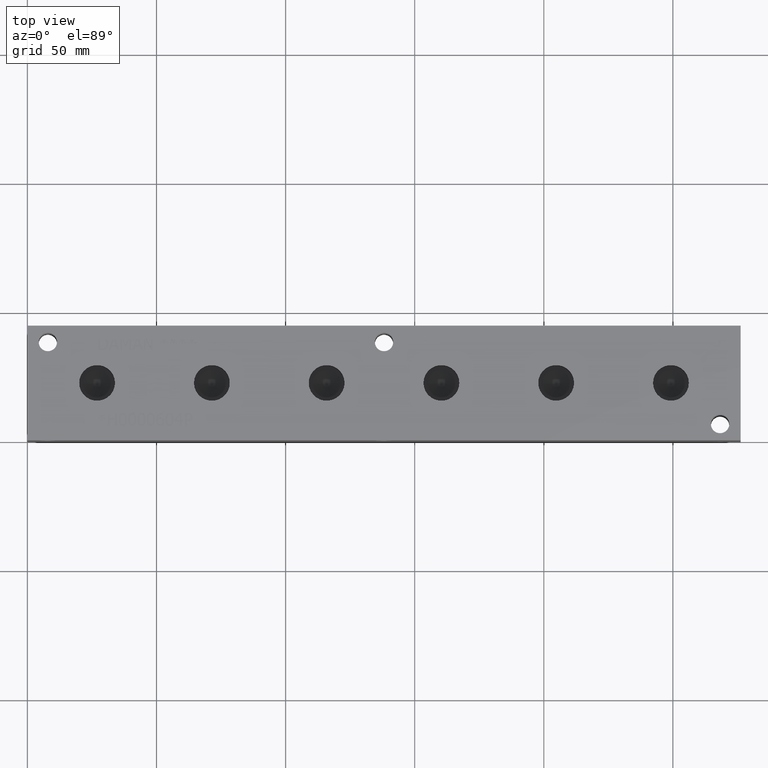
[diagram: clean part render]
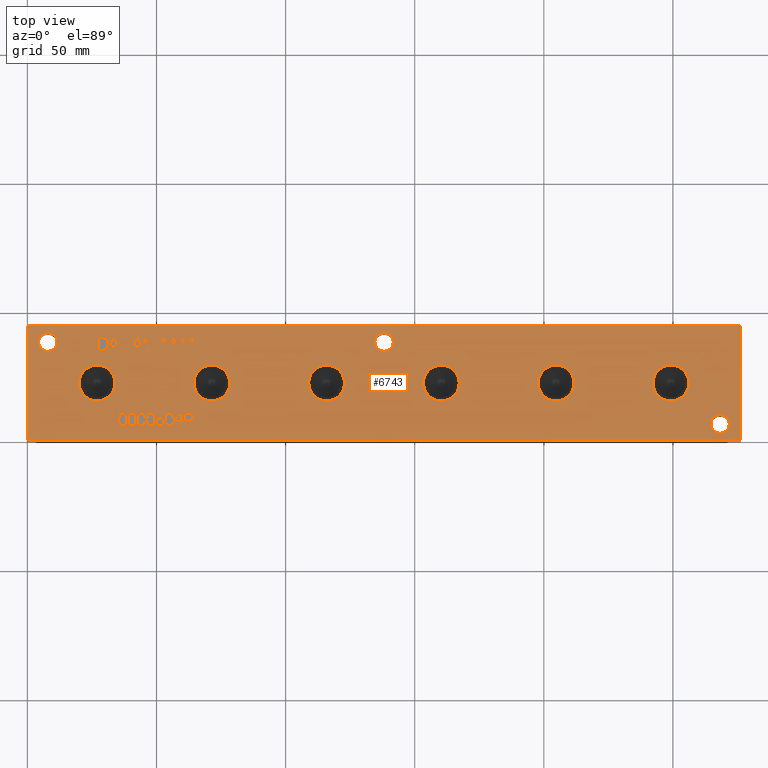
[diagram: same view with one face highlighted and labeled with its STEP entity id]
A machine part, top view. The second image highlights one B-rep face of the part: STEP entity #6743.
In plain terms, the highlighted planar face has unit normal (0, 0, 1).
Its self-contained STEP definition (entity closure, byte-faithful):
#62=CIRCLE('',#7023,6.9342);
#63=CIRCLE('',#7024,6.9342);
#64=CIRCLE('',#7025,6.9342);
#65=CIRCLE('',#7026,6.9342);
#66=CIRCLE('',#7027,6.9342);
#67=CIRCLE('',#7028,6.9342);
#68=CIRCLE('',#7029,6.9342);
#69=CIRCLE('',#7030,6.9342);
#70=CIRCLE('',#7031,6.9342);
#71=CIRCLE('',#7032,6.9342);
#72=CIRCLE('',#7033,6.9342);
#73=CIRCLE('',#7034,6.9342);
#74=CIRCLE('',#7035,3.5687);
#75=CIRCLE('',#7036,3.5687);
#76=CIRCLE('',#7037,3.5687);
#77=CIRCLE('',#7038,3.5687);
#78=CIRCLE('',#7039,3.5687);
#79=CIRCLE('',#7040,3.5687);
#144=FACE_BOUND('',#927,.T.);
#145=FACE_BOUND('',#928,.T.);
#146=FACE_BOUND('',#929,.T.);
#147=FACE_BOUND('',#930,.T.);
#148=FACE_BOUND('',#931,.T.);
#149=FACE_BOUND('',#932,.T.);
#150=FACE_BOUND('',#933,.T.);
#151=FACE_BOUND('',#934,.T.);
#152=FACE_BOUND('',#935,.T.);
#153=FACE_BOUND('',#936,.T.);
#154=FACE_BOUND('',#937,.T.);
#155=FACE_BOUND('',#938,.T.);
#156=FACE_BOUND('',#939,.T.);
#157=FACE_BOUND('',#940,.T.);
#158=FACE_BOUND('',#941,.T.);
#159=FACE_BOUND('',#942,.T.);
#160=FACE_BOUND('',#943,.T.);
#161=FACE_BOUND('',#944,.T.);
#162=FACE_BOUND('',#945,.T.);
#163=FACE_BOUND('',#946,.T.);
#164=FACE_BOUND('',#947,.T.);
#165=FACE_BOUND('',#948,.T.);
#166=FACE_BOUND('',#949,.T.);
#167=FACE_BOUND('',#950,.T.);
#168=FACE_BOUND('',#951,.T.);
#169=FACE_BOUND('',#952,.T.);
#170=FACE_BOUND('',#953,.T.);
#171=FACE_BOUND('',#954,.T.);
#258=PLANE('',#7022);
#566=FACE_OUTER_BOUND('',#926,.T.);
#926=EDGE_LOOP('',(#5010,#5011,#5012,#5013));
#927=EDGE_LOOP('',(#5014,#5015,#5016,#5017,#5018,#5019,#5020,#5021,#5022));
#928=EDGE_LOOP('',(#5023,#5024,#5025,#5026,#5027,#5028,#5029,#5030,#5031,
#5032,#5033));
#929=EDGE_LOOP('',(#5034,#5035,#5036,#5037));
#930=EDGE_LOOP('',(#5038,#5039,#5040,#5041,#5042,#5043,#5044,#5045,#5046,
#5047,#5048,#5049,#5050,#5051));
#931=EDGE_LOOP('',(#5052,#5053,#5054,#5055));
#932=EDGE_LOOP('',(#5056,#5057,#5058,#5059));
#933=EDGE_LOOP('',(#5060,#5061,#5062,#5063));
#934=EDGE_LOOP('',(#5064,#5065,#5066,#5067));
#935=EDGE_LOOP('',(#5068,#5069,#5070,#5071,#5072,#5073,#5074,#5075,#5076,
#5077,#5078,#5079,#5080,#5081,#5082,#5083,#5084,#5085));
#936=EDGE_LOOP('',(#5086,#5087,#5088,#5089,#5090,#5091,#5092,#5093,#5094,
#5095,#5096,#5097));
#937=EDGE_LOOP('',(#5098,#5099));
#938=EDGE_LOOP('',(#5100,#5101));
#939=EDGE_LOOP('',(#5102,#5103));
#940=EDGE_LOOP('',(#5104,#5105));
#941=EDGE_LOOP('',(#5106,#5107));
#942=EDGE_LOOP('',(#5108,#5109));
#943=EDGE_LOOP('',(#5110,#5111));
#944=EDGE_LOOP('',(#5112,#5113));
#945=EDGE_LOOP('',(#5114,#5115));
#946=EDGE_LOOP('',(#5116,#5117,#5118,#5119,#5120,#5121,#5122,#5123,#5124,
#5125,#5126,#5127,#5128,#5129,#5130,#5131,#5132,#5133));
#947=EDGE_LOOP('',(#5134,#5135,#5136,#5137,#5138,#5139,#5140,#5141,#5142,
#5143,#5144,#5145,#5146,#5147,#5148,#5149,#5150,#5151));
#948=EDGE_LOOP('',(#5152,#5153,#5154,#5155,#5156,#5157,#5158,#5159,#5160,
#5161));
#949=EDGE_LOOP('',(#5162,#5163,#5164,#5165,#5166,#5167,#5168,#5169));
#950=EDGE_LOOP('',(#5170,#5171,#5172,#5173,#5174,#5175,#5176));
#951=EDGE_LOOP('',(#5177,#5178,#5179,#5180,#5181,#5182,#5183,#5184));
#952=EDGE_LOOP('',(#5185,#5186,#5187,#5188,#5189,#5190,#5191,#5192,#5193,
#5194,#5195,#5196,#5197));
#953=EDGE_LOOP('',(#5198,#5199,#5200,#5201,#5202,#5203,#5204,#5205,#5206,
#5207,#5208,#5209,#5210,#5211,#5212,#5213,#5214,#5215));
#954=EDGE_LOOP('',(#5216,#5217,#5218,#5219,#5220,#5221,#5222,#5223,#5224,
#5225,#5226,#5227,#5228,#5229,#5230,#5231,#5232,#5233));
#1193=LINE('',#8801,#1867);
#1196=LINE('',#8807,#1870);
#1199=LINE('',#8813,#1873);
#1202=LINE('',#8819,#1876);
#1205=LINE('',#8825,#1879);
#1218=LINE('',#8886,#1892);
#1222=LINE('',#8894,#1896);
#1225=LINE('',#8900,#1899);
#1228=LINE('',#8906,#1902);
#1231=LINE('',#8912,#1905);
#1234=LINE('',#8918,#1908);
#1237=LINE('',#8924,#1911);
#1240=LINE('',#8930,#1914);
#1243=LINE('',#8936,#1917);
#1246=LINE('',#8942,#1920);
#1249=LINE('',#8947,#1923);
#1276=LINE('',#9412,#1950);
#1279=LINE('',#9418,#1953);
#1336=LINE('',#10472,#2010);
#1340=LINE('',#10480,#2014);
#1343=LINE('',#10486,#2017);
#1346=LINE('',#10492,#2020);
#1349=LINE('',#10498,#2023);
#1352=LINE('',#10504,#2026);
#1355=LINE('',#10510,#2029);
#1358=LINE('',#10516,#2032);
#1361=LINE('',#10522,#2035);
#1364=LINE('',#10528,#2038);
#1367=LINE('',#10534,#2041);
#1370=LINE('',#10540,#2044);
#1373=LINE('',#10546,#2047);
#1376=LINE('',#10552,#2050);
#1379=LINE('',#10558,#2053);
#1382=LINE('',#10564,#2056);
#1385=LINE('',#10570,#2059);
#1388=LINE('',#10575,#2062);
#1390=LINE('',#10581,#2064);
#1394=LINE('',#10589,#2068);
#1397=LINE('',#10595,#2071);
#1400=LINE('',#10601,#2074);
#1403=LINE('',#10607,#2077);
#1406=LINE('',#10613,#2080);
#1409=LINE('',#10619,#2083);
#1412=LINE('',#10625,#2086);
#1415=LINE('',#10631,#2089);
#1418=LINE('',#10637,#2092);
#1421=LINE('',#10643,#2095);
#1424=LINE('',#10648,#2098);
#1426=LINE('',#10654,#2100);
#1427=LINE('',#10656,#2101);
#1428=LINE('',#10658,#2102);
#1429=LINE('',#10659,#2103);
#1430=LINE('',#10698,#2104);
#1431=LINE('',#10700,#2105);
#1432=LINE('',#10702,#2106);
#1433=LINE('',#10704,#2107);
#1434=LINE('',#10706,#2108);
#1435=LINE('',#10708,#2109);
#1436=LINE('',#10710,#2110);
#1437=LINE('',#10712,#2111);
#1438=LINE('',#10714,#2112);
#1439=LINE('',#10716,#2113);
#1440=LINE('',#10718,#2114);
#1441=LINE('',#10720,#2115);
#1442=LINE('',#10722,#2116);
#1443=LINE('',#10724,#2117);
#1444=LINE('',#10726,#2118);
#1445=LINE('',#10728,#2119);
#1446=LINE('',#10730,#2120);
#1447=LINE('',#10731,#2121);
#1448=LINE('',#10734,#2122);
#1449=LINE('',#10736,#2123);
#1450=LINE('',#10738,#2124);
#1451=LINE('',#10740,#2125);
#1452=LINE('',#10742,#2126);
#1453=LINE('',#10744,#2127);
#1454=LINE('',#10746,#2128);
#1455=LINE('',#10748,#2129);
#1456=LINE('',#10750,#2130);
#1457=LINE('',#10752,#2131);
#1458=LINE('',#10754,#2132);
#1459=LINE('',#10756,#2133);
#1460=LINE('',#10758,#2134);
#1461=LINE('',#10760,#2135);
#1462=LINE('',#10762,#2136);
#1463=LINE('',#10764,#2137);
#1464=LINE('',#10766,#2138);
#1465=LINE('',#10767,#2139);
#1466=LINE('',#10770,#2140);
#1467=LINE('',#10772,#2141);
#1468=LINE('',#10774,#2142);
#1469=LINE('',#10776,#2143);
#1470=LINE('',#10778,#2144);
#1471=LINE('',#10780,#2145);
#1472=LINE('',#10782,#2146);
#1473=LINE('',#10784,#2147);
#1474=LINE('',#10786,#2148);
#1475=LINE('',#10787,#2149);
#1476=LINE('',#10790,#2150);
#1477=LINE('',#10792,#2151);
#1478=LINE('',#10794,#2152);
#1479=LINE('',#10796,#2153);
#1480=LINE('',#10798,#2154);
#1481=LINE('',#10800,#2155);
#1482=LINE('',#10802,#2156);
#1483=LINE('',#10803,#2157);
#1484=LINE('',#10821,#2158);
#1485=LINE('',#10823,#2159);
#1486=LINE('',#10825,#2160);
#1487=LINE('',#10832,#2161);
#1488=LINE('',#10834,#2162);
#1489=LINE('',#10836,#2163);
#1490=LINE('',#10838,#2164);
#1491=LINE('',#10840,#2165);
#1492=LINE('',#10842,#2166);
#1493=LINE('',#10844,#2167);
#1494=LINE('',#10845,#2168);
#1495=LINE('',#10848,#2169);
#1496=LINE('',#10850,#2170);
#1497=LINE('',#10852,#2171);
#1498=LINE('',#10854,#2172);
#1499=LINE('',#10856,#2173);
#1500=LINE('',#10858,#2174);
#1501=LINE('',#10860,#2175);
#1502=LINE('',#10862,#2176);
#1503=LINE('',#10864,#2177);
#1504=LINE('',#10866,#2178);
#1505=LINE('',#10868,#2179);
#1506=LINE('',#10870,#2180);
#1507=LINE('',#10871,#2181);
#1508=LINE('',#10874,#2182);
#1509=LINE('',#10876,#2183);
#1510=LINE('',#10878,#2184);
#1511=LINE('',#10880,#2185);
#1512=LINE('',#10882,#2186);
#1513=LINE('',#10884,#2187);
#1514=LINE('',#10886,#2188);
#1515=LINE('',#10888,#2189);
#1516=LINE('',#10890,#2190);
#1517=LINE('',#10892,#2191);
#1518=LINE('',#10894,#2192);
#1519=LINE('',#10896,#2193);
#1520=LINE('',#10898,#2194);
#1521=LINE('',#10900,#2195);
#1522=LINE('',#10902,#2196);
#1523=LINE('',#10904,#2197);
#1524=LINE('',#10906,#2198);
#1525=LINE('',#10907,#2199);
#1526=LINE('',#10910,#2200);
#1527=LINE('',#10912,#2201);
#1528=LINE('',#10914,#2202);
#1529=LINE('',#10916,#2203);
#1530=LINE('',#10918,#2204);
#1531=LINE('',#10920,#2205);
#1532=LINE('',#10922,#2206);
#1533=LINE('',#10924,#2207);
#1534=LINE('',#10926,#2208);
#1535=LINE('',#10928,#2209);
#1536=LINE('',#10930,#2210);
#1537=LINE('',#10932,#2211);
#1538=LINE('',#10934,#2212);
#1539=LINE('',#10936,#2213);
#1540=LINE('',#10938,#2214);
#1541=LINE('',#10940,#2215);
#1542=LINE('',#10942,#2216);
#1543=LINE('',#10943,#2217);
#1867=VECTOR('',#7327,10.);
#1870=VECTOR('',#7332,10.);
#1873=VECTOR('',#7337,10.);
#1876=VECTOR('',#7342,10.);
#1879=VECTOR('',#7347,10.);
#1892=VECTOR('',#7370,10.);
#1896=VECTOR('',#7376,10.);
#1899=VECTOR('',#7381,10.);
#1902=VECTOR('',#7386,10.);
#1905=VECTOR('',#7391,10.);
#1908=VECTOR('',#7396,10.);
#1911=VECTOR('',#7401,10.);
#1914=VECTOR('',#7406,10.);
#1917=VECTOR('',#7411,10.);
#1920=VECTOR('',#7416,10.);
#1923=VECTOR('',#7421,10.);
#1950=VECTOR('',#7454,10.);
#1953=VECTOR('',#7459,10.);
#2010=VECTOR('',#7528,10.);
#2014=VECTOR('',#7534,10.);
#2017=VECTOR('',#7539,10.);
#2020=VECTOR('',#7544,10.);
#2023=VECTOR('',#7549,10.);
#2026=VECTOR('',#7554,10.);
#2029=VECTOR('',#7559,10.);
#2032=VECTOR('',#7564,10.);
#2035=VECTOR('',#7569,10.);
#2038=VECTOR('',#7574,10.);
#2041=VECTOR('',#7579,10.);
#2044=VECTOR('',#7584,10.);
#2047=VECTOR('',#7589,10.);
#2050=VECTOR('',#7594,10.);
#2053=VECTOR('',#7599,10.);
#2056=VECTOR('',#7604,10.);
#2059=VECTOR('',#7609,10.);
#2062=VECTOR('',#7614,10.);
#2064=VECTOR('',#7620,10.);
#2068=VECTOR('',#7626,10.);
#2071=VECTOR('',#7631,10.);
#2074=VECTOR('',#7636,10.);
#2077=VECTOR('',#7641,10.);
#2080=VECTOR('',#7646,10.);
#2083=VECTOR('',#7651,10.);
#2086=VECTOR('',#7656,10.);
#2089=VECTOR('',#7661,10.);
#2092=VECTOR('',#7666,10.);
#2095=VECTOR('',#7671,10.);
#2098=VECTOR('',#7676,10.);
#2100=VECTOR('',#7682,10.);
#2101=VECTOR('',#7683,10.);
#2102=VECTOR('',#7684,10.);
#2103=VECTOR('',#7685,10.);
#2104=VECTOR('',#7722,10.);
#2105=VECTOR('',#7723,10.);
#2106=VECTOR('',#7724,10.);
#2107=VECTOR('',#7725,10.);
#2108=VECTOR('',#7726,10.);
#2109=VECTOR('',#7727,10.);
#2110=VECTOR('',#7728,10.);
#2111=VECTOR('',#7729,10.);
#2112=VECTOR('',#7730,10.);
#2113=VECTOR('',#7731,10.);
#2114=VECTOR('',#7732,10.);
#2115=VECTOR('',#7733,10.);
#2116=VECTOR('',#7734,10.);
#2117=VECTOR('',#7735,10.);
#2118=VECTOR('',#7736,10.);
#2119=VECTOR('',#7737,10.);
#2120=VECTOR('',#7738,10.);
#2121=VECTOR('',#7739,10.);
#2122=VECTOR('',#7740,10.);
#2123=VECTOR('',#7741,10.);
#2124=VECTOR('',#7742,10.);
#2125=VECTOR('',#7743,10.);
#2126=VECTOR('',#7744,10.);
#2127=VECTOR('',#7745,10.);
#2128=VECTOR('',#7746,10.);
#2129=VECTOR('',#7747,10.);
#2130=VECTOR('',#7748,10.);
#2131=VECTOR('',#7749,10.);
#2132=VECTOR('',#7750,10.);
#2133=VECTOR('',#7751,10.);
#2134=VECTOR('',#7752,10.);
#2135=VECTOR('',#7753,10.);
#2136=VECTOR('',#7754,10.);
#2137=VECTOR('',#7755,10.);
#2138=VECTOR('',#7756,10.);
#2139=VECTOR('',#7757,10.);
#2140=VECTOR('',#7758,10.);
#2141=VECTOR('',#7759,10.);
#2142=VECTOR('',#7760,10.);
#2143=VECTOR('',#7761,10.);
#2144=VECTOR('',#7762,10.);
#2145=VECTOR('',#7763,10.);
#2146=VECTOR('',#7764,10.);
#2147=VECTOR('',#7765,10.);
#2148=VECTOR('',#7766,10.);
#2149=VECTOR('',#7767,10.);
#2150=VECTOR('',#7768,10.);
#2151=VECTOR('',#7769,10.);
#2152=VECTOR('',#7770,10.);
#2153=VECTOR('',#7771,10.);
#2154=VECTOR('',#7772,10.);
#2155=VECTOR('',#7773,10.);
#2156=VECTOR('',#7774,10.);
#2157=VECTOR('',#7775,10.);
#2158=VECTOR('',#7776,10.);
#2159=VECTOR('',#7777,10.);
#2160=VECTOR('',#7778,10.);
#2161=VECTOR('',#7779,10.);
#2162=VECTOR('',#7780,10.);
#2163=VECTOR('',#7781,10.);
#2164=VECTOR('',#7782,10.);
#2165=VECTOR('',#7783,10.);
#2166=VECTOR('',#7784,10.);
#2167=VECTOR('',#7785,10.);
#2168=VECTOR('',#7786,10.);
#2169=VECTOR('',#7787,10.);
#2170=VECTOR('',#7788,10.);
#2171=VECTOR('',#7789,10.);
#2172=VECTOR('',#7790,10.);
#2173=VECTOR('',#7791,10.);
#2174=VECTOR('',#7792,10.);
#2175=VECTOR('',#7793,10.);
#2176=VECTOR('',#7794,10.);
#2177=VECTOR('',#7795,10.);
#2178=VECTOR('',#7796,10.);
#2179=VECTOR('',#7797,10.);
#2180=VECTOR('',#7798,10.);
#2181=VECTOR('',#7799,10.);
#2182=VECTOR('',#7800,10.);
#2183=VECTOR('',#7801,10.);
#2184=VECTOR('',#7802,10.);
#2185=VECTOR('',#7803,10.);
#2186=VECTOR('',#7804,10.);
#2187=VECTOR('',#7805,10.);
#2188=VECTOR('',#7806,10.);
#2189=VECTOR('',#7807,10.);
#2190=VECTOR('',#7808,10.);
#2191=VECTOR('',#7809,10.);
#2192=VECTOR('',#7810,10.);
#2193=VECTOR('',#7811,10.);
#2194=VECTOR('',#7812,10.);
#2195=VECTOR('',#7813,10.);
#2196=VECTOR('',#7814,10.);
#2197=VECTOR('',#7815,10.);
#2198=VECTOR('',#7816,10.);
#2199=VECTOR('',#7817,10.);
#2200=VECTOR('',#7818,10.);
#2201=VECTOR('',#7819,10.);
#2202=VECTOR('',#7820,10.);
#2203=VECTOR('',#7821,10.);
#2204=VECTOR('',#7822,10.);
#2205=VECTOR('',#7823,10.);
#2206=VECTOR('',#7824,10.);
#2207=VECTOR('',#7825,10.);
#2208=VECTOR('',#7826,10.);
#2209=VECTOR('',#7827,10.);
#2210=VECTOR('',#7828,10.);
#2211=VECTOR('',#7829,10.);
#2212=VECTOR('',#7830,10.);
#2213=VECTOR('',#7831,10.);
#2214=VECTOR('',#7832,10.);
#2215=VECTOR('',#7833,10.);
#2216=VECTOR('',#7834,10.);
#2217=VECTOR('',#7835,10.);
#2533=B_SPLINE_CURVE_WITH_KNOTS('',2,(#8768,#8769,#8770,#8771),
 .UNSPECIFIED.,.F.,.F.,(3,1,3),(0.,1.,2.),.UNSPECIFIED.);
#2535=B_SPLINE_CURVE_WITH_KNOTS('',2,(#8789,#8790,#8791,#8792),
 .UNSPECIFIED.,.F.,.F.,(3,1,3),(0.,1.,2.),.UNSPECIFIED.);
#2537=B_SPLINE_CURVE_WITH_KNOTS('',2,(#8838,#8839,#8840,#8841),
 .UNSPECIFIED.,.F.,.F.,(3,1,3),(0.,1.,2.),.UNSPECIFIED.);
#2539=B_SPLINE_CURVE_WITH_KNOTS('',2,(#8856,#8857,#8858,#8859),
 .UNSPECIFIED.,.F.,.F.,(3,1,3),(0.,1.,2.),.UNSPECIFIED.);
#2557=B_SPLINE_CURVE_WITH_KNOTS('',2,(#9112,#9113,#9114,#9115),
 .UNSPECIFIED.,.F.,.F.,(3,1,3),(0.,1.,2.),.UNSPECIFIED.);
#2559=B_SPLINE_CURVE_WITH_KNOTS('',2,(#9133,#9134,#9135,#9136),
 .UNSPECIFIED.,.F.,.F.,(3,1,3),(0.,1.,2.),.UNSPECIFIED.);
#2561=B_SPLINE_CURVE_WITH_KNOTS('',2,(#9152,#9153,#9154,#9155),
 .UNSPECIFIED.,.F.,.F.,(3,1,3),(0.,1.,2.),.UNSPECIFIED.);
#2563=B_SPLINE_CURVE_WITH_KNOTS('',2,(#9170,#9171,#9172,#9173),
 .UNSPECIFIED.,.F.,.F.,(3,1,3),(0.,1.,2.),.UNSPECIFIED.);
#2579=B_SPLINE_CURVE_WITH_KNOTS('',2,(#9322,#9323,#9324,#9325),
 .UNSPECIFIED.,.F.,.F.,(3,1,3),(0.,1.,2.),.UNSPECIFIED.);
#2581=B_SPLINE_CURVE_WITH_KNOTS('',2,(#9343,#9344,#9345,#9346),
 .UNSPECIFIED.,.F.,.F.,(3,1,3),(0.,1.,2.),.UNSPECIFIED.);
#2583=B_SPLINE_CURVE_WITH_KNOTS('',2,(#9362,#9363,#9364,#9365),
 .UNSPECIFIED.,.F.,.F.,(3,1,3),(0.,1.,2.),.UNSPECIFIED.);
#2585=B_SPLINE_CURVE_WITH_KNOTS('',2,(#9381,#9382,#9383,#9384),
 .UNSPECIFIED.,.F.,.F.,(3,1,3),(0.,1.,2.),.UNSPECIFIED.);
#2587=B_SPLINE_CURVE_WITH_KNOTS('',2,(#9400,#9401,#9402,#9403),
 .UNSPECIFIED.,.F.,.F.,(3,1,3),(0.,1.,2.),.UNSPECIFIED.);
#2589=B_SPLINE_CURVE_WITH_KNOTS('',2,(#9431,#9432,#9433,#9434),
 .UNSPECIFIED.,.F.,.F.,(3,1,3),(0.,1.,2.),.UNSPECIFIED.);
#2591=B_SPLINE_CURVE_WITH_KNOTS('',2,(#9450,#9451,#9452,#9453),
 .UNSPECIFIED.,.F.,.F.,(3,1,3),(0.,1.,2.),.UNSPECIFIED.);
#2593=B_SPLINE_CURVE_WITH_KNOTS('',2,(#9469,#9470,#9471,#9472),
 .UNSPECIFIED.,.F.,.F.,(3,1,3),(0.,1.,2.),.UNSPECIFIED.);
#2595=B_SPLINE_CURVE_WITH_KNOTS('',2,(#9488,#9489,#9490,#9491),
 .UNSPECIFIED.,.F.,.F.,(3,1,3),(0.,1.,2.),.UNSPECIFIED.);
#2597=B_SPLINE_CURVE_WITH_KNOTS('',2,(#9507,#9508,#9509,#9510),
 .UNSPECIFIED.,.F.,.F.,(3,1,3),(0.,1.,2.),.UNSPECIFIED.);
#2599=B_SPLINE_CURVE_WITH_KNOTS('',2,(#9526,#9527,#9528,#9529),
 .UNSPECIFIED.,.F.,.F.,(3,1,3),(0.,1.,2.),.UNSPECIFIED.);
#2601=B_SPLINE_CURVE_WITH_KNOTS('',2,(#9544,#9545,#9546,#9547),
 .UNSPECIFIED.,.F.,.F.,(3,1,3),(0.,1.,2.),.UNSPECIFIED.);
#2619=B_SPLINE_CURVE_WITH_KNOTS('',2,(#9715,#9716,#9717,#9718),
 .UNSPECIFIED.,.F.,.F.,(3,1,3),(0.,1.,2.),.UNSPECIFIED.);
#2621=B_SPLINE_CURVE_WITH_KNOTS('',2,(#9736,#9737,#9738,#9739),
 .UNSPECIFIED.,.F.,.F.,(3,1,3),(0.,1.,2.),.UNSPECIFIED.);
#2623=B_SPLINE_CURVE_WITH_KNOTS('',2,(#9755,#9756,#9757,#9758),
 .UNSPECIFIED.,.F.,.F.,(3,1,3),(0.,1.,2.),.UNSPECIFIED.);
#2625=B_SPLINE_CURVE_WITH_KNOTS('',2,(#9773,#9774,#9775,#9776),
 .UNSPECIFIED.,.F.,.F.,(3,1,3),(0.,1.,2.),.UNSPECIFIED.);
#2643=B_SPLINE_CURVE_WITH_KNOTS('',2,(#9944,#9945,#9946,#9947),
 .UNSPECIFIED.,.F.,.F.,(3,1,3),(0.,1.,2.),.UNSPECIFIED.);
#2645=B_SPLINE_CURVE_WITH_KNOTS('',2,(#9965,#9966,#9967,#9968),
 .UNSPECIFIED.,.F.,.F.,(3,1,3),(0.,1.,2.),.UNSPECIFIED.);
#2647=B_SPLINE_CURVE_WITH_KNOTS('',2,(#9984,#9985,#9986,#9987),
 .UNSPECIFIED.,.F.,.F.,(3,1,3),(0.,1.,2.),.UNSPECIFIED.);
#2649=B_SPLINE_CURVE_WITH_KNOTS('',2,(#10002,#10003,#10004,#10005),
 .UNSPECIFIED.,.F.,.F.,(3,1,3),(0.,1.,2.),.UNSPECIFIED.);
#2667=B_SPLINE_CURVE_WITH_KNOTS('',2,(#10173,#10174,#10175,#10176),
 .UNSPECIFIED.,.F.,.F.,(3,1,3),(0.,1.,2.),.UNSPECIFIED.);
#2669=B_SPLINE_CURVE_WITH_KNOTS('',2,(#10194,#10195,#10196,#10197),
 .UNSPECIFIED.,.F.,.F.,(3,1,3),(0.,1.,2.),.UNSPECIFIED.);
#2671=B_SPLINE_CURVE_WITH_KNOTS('',2,(#10213,#10214,#10215,#10216),
 .UNSPECIFIED.,.F.,.F.,(3,1,3),(0.,1.,2.),.UNSPECIFIED.);
#2673=B_SPLINE_CURVE_WITH_KNOTS('',2,(#10231,#10232,#10233,#10234),
 .UNSPECIFIED.,.F.,.F.,(3,1,3),(0.,1.,2.),.UNSPECIFIED.);
#2691=B_SPLINE_CURVE_WITH_KNOTS('',2,(#10402,#10403,#10404,#10405),
 .UNSPECIFIED.,.F.,.F.,(3,1,3),(0.,1.,2.),.UNSPECIFIED.);
#2693=B_SPLINE_CURVE_WITH_KNOTS('',2,(#10423,#10424,#10425,#10426),
 .UNSPECIFIED.,.F.,.F.,(3,1,3),(0.,1.,2.),.UNSPECIFIED.);
#2695=B_SPLINE_CURVE_WITH_KNOTS('',2,(#10442,#10443,#10444,#10445),
 .UNSPECIFIED.,.F.,.F.,(3,1,3),(0.,1.,2.),.UNSPECIFIED.);
#2697=B_SPLINE_CURVE_WITH_KNOTS('',2,(#10460,#10461,#10462,#10463),
 .UNSPECIFIED.,.F.,.F.,(3,1,3),(0.,1.,2.),.UNSPECIFIED.);
#2699=B_SPLINE_CURVE_WITH_KNOTS('',2,(#10806,#10807,#10808,#10809),
 .UNSPECIFIED.,.F.,.F.,(3,1,3),(0.,1.,2.),.UNSPECIFIED.);
#2700=B_SPLINE_CURVE_WITH_KNOTS('',2,(#10811,#10812,#10813,#10814),
 .UNSPECIFIED.,.F.,.F.,(3,1,3),(0.,1.,2.),.UNSPECIFIED.);
#2701=B_SPLINE_CURVE_WITH_KNOTS('',2,(#10816,#10817,#10818,#10819),
 .UNSPECIFIED.,.F.,.F.,(3,1,3),(0.,1.,2.),.UNSPECIFIED.);
#2702=B_SPLINE_CURVE_WITH_KNOTS('',2,(#10826,#10827,#10828,#10829),
 .UNSPECIFIED.,.F.,.F.,(3,1,3),(0.,1.,2.),.UNSPECIFIED.);
#2729=VERTEX_POINT('',#8766);
#2730=VERTEX_POINT('',#8767);
#2733=VERTEX_POINT('',#8788);
#2735=VERTEX_POINT('',#8800);
#2737=VERTEX_POINT('',#8806);
#2739=VERTEX_POINT('',#8812);
#2741=VERTEX_POINT('',#8818);
#2743=VERTEX_POINT('',#8824);
#2745=VERTEX_POINT('',#8837);
#2753=VERTEX_POINT('',#8884);
#2754=VERTEX_POINT('',#8885);
#2757=VERTEX_POINT('',#8893);
#2759=VERTEX_POINT('',#8899);
#2761=VERTEX_POINT('',#8905);
#2763=VERTEX_POINT('',#8911);
#2765=VERTEX_POINT('',#8917);
#2767=VERTEX_POINT('',#8923);
#2769=VERTEX_POINT('',#8929);
#2771=VERTEX_POINT('',#8935);
#2773=VERTEX_POINT('',#8941);
#2791=VERTEX_POINT('',#9110);
#2792=VERTEX_POINT('',#9111);
#2795=VERTEX_POINT('',#9132);
#2797=VERTEX_POINT('',#9151);
#2813=VERTEX_POINT('',#9320);
#2814=VERTEX_POINT('',#9321);
#2817=VERTEX_POINT('',#9342);
#2819=VERTEX_POINT('',#9361);
#2821=VERTEX_POINT('',#9380);
#2823=VERTEX_POINT('',#9399);
#2825=VERTEX_POINT('',#9411);
#2827=VERTEX_POINT('',#9417);
#2829=VERTEX_POINT('',#9430);
#2831=VERTEX_POINT('',#9449);
#2833=VERTEX_POINT('',#9468);
#2835=VERTEX_POINT('',#9487);
#2837=VERTEX_POINT('',#9506);
#2839=VERTEX_POINT('',#9525);
#2857=VERTEX_POINT('',#9713);
#2858=VERTEX_POINT('',#9714);
#2861=VERTEX_POINT('',#9735);
#2863=VERTEX_POINT('',#9754);
#2881=VERTEX_POINT('',#9942);
#2882=VERTEX_POINT('',#9943);
#2885=VERTEX_POINT('',#9964);
#2887=VERTEX_POINT('',#9983);
#2905=VERTEX_POINT('',#10171);
#2906=VERTEX_POINT('',#10172);
#2909=VERTEX_POINT('',#10193);
#2911=VERTEX_POINT('',#10212);
#2929=VERTEX_POINT('',#10400);
#2930=VERTEX_POINT('',#10401);
#2933=VERTEX_POINT('',#10422);
#2935=VERTEX_POINT('',#10441);
#2937=VERTEX_POINT('',#10470);
#2938=VERTEX_POINT('',#10471);
#2941=VERTEX_POINT('',#10479);
#2943=VERTEX_POINT('',#10485);
#2945=VERTEX_POINT('',#10491);
#2947=VERTEX_POINT('',#10497);
#2949=VERTEX_POINT('',#10503);
#2951=VERTEX_POINT('',#10509);
#2953=VERTEX_POINT('',#10515);
#2955=VERTEX_POINT('',#10521);
#2957=VERTEX_POINT('',#10527);
#2959=VERTEX_POINT('',#10533);
#2961=VERTEX_POINT('',#10539);
#2963=VERTEX_POINT('',#10545);
#2965=VERTEX_POINT('',#10551);
#2967=VERTEX_POINT('',#10557);
#2969=VERTEX_POINT('',#10563);
#2971=VERTEX_POINT('',#10569);
#2973=VERTEX_POINT('',#10579);
#2974=VERTEX_POINT('',#10580);
#2977=VERTEX_POINT('',#10588);
#2979=VERTEX_POINT('',#10594);
#2981=VERTEX_POINT('',#10600);
#2983=VERTEX_POINT('',#10606);
#2985=VERTEX_POINT('',#10612);
#2987=VERTEX_POINT('',#10618);
#2989=VERTEX_POINT('',#10624);
#2991=VERTEX_POINT('',#10630);
#2993=VERTEX_POINT('',#10636);
#2995=VERTEX_POINT('',#10642);
#2997=VERTEX_POINT('',#10652);
#2998=VERTEX_POINT('',#10653);
#2999=VERTEX_POINT('',#10655);
#3000=VERTEX_POINT('',#10657);
#3001=VERTEX_POINT('',#10660);
#3002=VERTEX_POINT('',#10661);
#3003=VERTEX_POINT('',#10664);
#3004=VERTEX_POINT('',#10665);
#3005=VERTEX_POINT('',#10668);
#3006=VERTEX_POINT('',#10669);
#3007=VERTEX_POINT('',#10672);
#3008=VERTEX_POINT('',#10673);
#3009=VERTEX_POINT('',#10676);
#3010=VERTEX_POINT('',#10677);
#3011=VERTEX_POINT('',#10680);
#3012=VERTEX_POINT('',#10681);
#3013=VERTEX_POINT('',#10684);
#3014=VERTEX_POINT('',#10685);
#3015=VERTEX_POINT('',#10688);
#3016=VERTEX_POINT('',#10689);
#3017=VERTEX_POINT('',#10692);
#3018=VERTEX_POINT('',#10693);
#3019=VERTEX_POINT('',#10696);
#3020=VERTEX_POINT('',#10697);
#3021=VERTEX_POINT('',#10699);
#3022=VERTEX_POINT('',#10701);
#3023=VERTEX_POINT('',#10703);
#3024=VERTEX_POINT('',#10705);
#3025=VERTEX_POINT('',#10707);
#3026=VERTEX_POINT('',#10709);
#3027=VERTEX_POINT('',#10711);
#3028=VERTEX_POINT('',#10713);
#3029=VERTEX_POINT('',#10715);
#3030=VERTEX_POINT('',#10717);
#3031=VERTEX_POINT('',#10719);
#3032=VERTEX_POINT('',#10721);
#3033=VERTEX_POINT('',#10723);
#3034=VERTEX_POINT('',#10725);
#3035=VERTEX_POINT('',#10727);
#3036=VERTEX_POINT('',#10729);
#3037=VERTEX_POINT('',#10732);
#3038=VERTEX_POINT('',#10733);
#3039=VERTEX_POINT('',#10735);
#3040=VERTEX_POINT('',#10737);
#3041=VERTEX_POINT('',#10739);
#3042=VERTEX_POINT('',#10741);
#3043=VERTEX_POINT('',#10743);
#3044=VERTEX_POINT('',#10745);
#3045=VERTEX_POINT('',#10747);
#3046=VERTEX_POINT('',#10749);
#3047=VERTEX_POINT('',#10751);
#3048=VERTEX_POINT('',#10753);
#3049=VERTEX_POINT('',#10755);
#3050=VERTEX_POINT('',#10757);
#3051=VERTEX_POINT('',#10759);
#3052=VERTEX_POINT('',#10761);
#3053=VERTEX_POINT('',#10763);
#3054=VERTEX_POINT('',#10765);
#3055=VERTEX_POINT('',#10768);
#3056=VERTEX_POINT('',#10769);
#3057=VERTEX_POINT('',#10771);
#3058=VERTEX_POINT('',#10773);
#3059=VERTEX_POINT('',#10775);
#3060=VERTEX_POINT('',#10777);
#3061=VERTEX_POINT('',#10779);
#3062=VERTEX_POINT('',#10781);
#3063=VERTEX_POINT('',#10783);
#3064=VERTEX_POINT('',#10785);
#3065=VERTEX_POINT('',#10788);
#3066=VERTEX_POINT('',#10789);
#3067=VERTEX_POINT('',#10791);
#3068=VERTEX_POINT('',#10793);
#3069=VERTEX_POINT('',#10795);
#3070=VERTEX_POINT('',#10797);
#3071=VERTEX_POINT('',#10799);
#3072=VERTEX_POINT('',#10801);
#3073=VERTEX_POINT('',#10804);
#3074=VERTEX_POINT('',#10805);
#3075=VERTEX_POINT('',#10810);
#3076=VERTEX_POINT('',#10815);
#3077=VERTEX_POINT('',#10820);
#3078=VERTEX_POINT('',#10822);
#3079=VERTEX_POINT('',#10824);
#3080=VERTEX_POINT('',#10830);
#3081=VERTEX_POINT('',#10831);
#3082=VERTEX_POINT('',#10833);
#3083=VERTEX_POINT('',#10835);
#3084=VERTEX_POINT('',#10837);
#3085=VERTEX_POINT('',#10839);
#3086=VERTEX_POINT('',#10841);
#3087=VERTEX_POINT('',#10843);
#3088=VERTEX_POINT('',#10846);
#3089=VERTEX_POINT('',#10847);
#3090=VERTEX_POINT('',#10849);
#3091=VERTEX_POINT('',#10851);
#3092=VERTEX_POINT('',#10853);
#3093=VERTEX_POINT('',#10855);
#3094=VERTEX_POINT('',#10857);
#3095=VERTEX_POINT('',#10859);
#3096=VERTEX_POINT('',#10861);
#3097=VERTEX_POINT('',#10863);
#3098=VERTEX_POINT('',#10865);
#3099=VERTEX_POINT('',#10867);
#3100=VERTEX_POINT('',#10869);
#3101=VERTEX_POINT('',#10872);
#3102=VERTEX_POINT('',#10873);
#3103=VERTEX_POINT('',#10875);
#3104=VERTEX_POINT('',#10877);
#3105=VERTEX_POINT('',#10879);
#3106=VERTEX_POINT('',#10881);
#3107=VERTEX_POINT('',#10883);
#3108=VERTEX_POINT('',#10885);
#3109=VERTEX_POINT('',#10887);
#3110=VERTEX_POINT('',#10889);
#3111=VERTEX_POINT('',#10891);
#3112=VERTEX_POINT('',#10893);
#3113=VERTEX_POINT('',#10895);
#3114=VERTEX_POINT('',#10897);
#3115=VERTEX_POINT('',#10899);
#3116=VERTEX_POINT('',#10901);
#3117=VERTEX_POINT('',#10903);
#3118=VERTEX_POINT('',#10905);
#3119=VERTEX_POINT('',#10908);
#3120=VERTEX_POINT('',#10909);
#3121=VERTEX_POINT('',#10911);
#3122=VERTEX_POINT('',#10913);
#3123=VERTEX_POINT('',#10915);
#3124=VERTEX_POINT('',#10917);
#3125=VERTEX_POINT('',#10919);
#3126=VERTEX_POINT('',#10921);
#3127=VERTEX_POINT('',#10923);
#3128=VERTEX_POINT('',#10925);
#3129=VERTEX_POINT('',#10927);
#3130=VERTEX_POINT('',#10929);
#3131=VERTEX_POINT('',#10931);
#3132=VERTEX_POINT('',#10933);
#3133=VERTEX_POINT('',#10935);
#3134=VERTEX_POINT('',#10937);
#3135=VERTEX_POINT('',#10939);
#3136=VERTEX_POINT('',#10941);
#3376=EDGE_CURVE('',#2729,#2730,#2533,.T.);
#3380=EDGE_CURVE('',#2733,#2729,#2535,.T.);
#3383=EDGE_CURVE('',#2735,#2733,#1193,.T.);
#3386=EDGE_CURVE('',#2737,#2735,#1196,.T.);
#3389=EDGE_CURVE('',#2739,#2737,#1199,.T.);
#3392=EDGE_CURVE('',#2741,#2739,#1202,.T.);
#3395=EDGE_CURVE('',#2743,#2741,#1205,.T.);
#3398=EDGE_CURVE('',#2745,#2743,#2537,.T.);
#3401=EDGE_CURVE('',#2730,#2745,#2539,.T.);
#3412=EDGE_CURVE('',#2753,#2754,#1218,.T.);
#3416=EDGE_CURVE('',#2757,#2753,#1222,.T.);
#3419=EDGE_CURVE('',#2759,#2757,#1225,.T.);
#3422=EDGE_CURVE('',#2761,#2759,#1228,.T.);
#3425=EDGE_CURVE('',#2763,#2761,#1231,.T.);
#3428=EDGE_CURVE('',#2765,#2763,#1234,.T.);
#3431=EDGE_CURVE('',#2767,#2765,#1237,.T.);
#3434=EDGE_CURVE('',#2769,#2767,#1240,.T.);
#3437=EDGE_CURVE('',#2771,#2769,#1243,.T.);
#3440=EDGE_CURVE('',#2773,#2771,#1246,.T.);
#3443=EDGE_CURVE('',#2754,#2773,#1249,.T.);
#3469=EDGE_CURVE('',#2791,#2792,#2557,.T.);
#3473=EDGE_CURVE('',#2795,#2791,#2559,.T.);
#3476=EDGE_CURVE('',#2797,#2795,#2561,.T.);
#3479=EDGE_CURVE('',#2792,#2797,#2563,.T.);
#3502=EDGE_CURVE('',#2813,#2814,#2579,.T.);
#3506=EDGE_CURVE('',#2817,#2813,#2581,.T.);
#3509=EDGE_CURVE('',#2819,#2817,#2583,.T.);
#3512=EDGE_CURVE('',#2821,#2819,#2585,.T.);
#3515=EDGE_CURVE('',#2823,#2821,#2587,.T.);
#3518=EDGE_CURVE('',#2825,#2823,#1276,.T.);
#3521=EDGE_CURVE('',#2827,#2825,#1279,.T.);
#3524=EDGE_CURVE('',#2829,#2827,#2589,.T.);
#3527=EDGE_CURVE('',#2831,#2829,#2591,.T.);
#3530=EDGE_CURVE('',#2833,#2831,#2593,.T.);
#3533=EDGE_CURVE('',#2835,#2833,#2595,.T.);
#3536=EDGE_CURVE('',#2837,#2835,#2597,.T.);
#3539=EDGE_CURVE('',#2839,#2837,#2599,.T.);
#3542=EDGE_CURVE('',#2814,#2839,#2601,.T.);
#3568=EDGE_CURVE('',#2857,#2858,#2619,.T.);
#3572=EDGE_CURVE('',#2861,#2857,#2621,.T.);
#3575=EDGE_CURVE('',#2863,#2861,#2623,.T.);
#3578=EDGE_CURVE('',#2858,#2863,#2625,.T.);
#3604=EDGE_CURVE('',#2881,#2882,#2643,.T.);
#3608=EDGE_CURVE('',#2885,#2881,#2645,.T.);
#3611=EDGE_CURVE('',#2887,#2885,#2647,.T.);
#3614=EDGE_CURVE('',#2882,#2887,#2649,.T.);
#3640=EDGE_CURVE('',#2905,#2906,#2667,.T.);
#3644=EDGE_CURVE('',#2909,#2905,#2669,.T.);
#3647=EDGE_CURVE('',#2911,#2909,#2671,.T.);
#3650=EDGE_CURVE('',#2906,#2911,#2673,.T.);
#3676=EDGE_CURVE('',#2929,#2930,#2691,.T.);
#3680=EDGE_CURVE('',#2933,#2929,#2693,.T.);
#3683=EDGE_CURVE('',#2935,#2933,#2695,.T.);
#3686=EDGE_CURVE('',#2930,#2935,#2697,.T.);
#3688=EDGE_CURVE('',#2937,#2938,#1336,.T.);
#3692=EDGE_CURVE('',#2941,#2937,#1340,.T.);
#3695=EDGE_CURVE('',#2943,#2941,#1343,.T.);
#3698=EDGE_CURVE('',#2945,#2943,#1346,.T.);
#3701=EDGE_CURVE('',#2947,#2945,#1349,.T.);
#3704=EDGE_CURVE('',#2949,#2947,#1352,.T.);
#3707=EDGE_CURVE('',#2951,#2949,#1355,.T.);
#3710=EDGE_CURVE('',#2953,#2951,#1358,.T.);
#3713=EDGE_CURVE('',#2955,#2953,#1361,.T.);
#3716=EDGE_CURVE('',#2957,#2955,#1364,.T.);
#3719=EDGE_CURVE('',#2959,#2957,#1367,.T.);
#3722=EDGE_CURVE('',#2961,#2959,#1370,.T.);
#3725=EDGE_CURVE('',#2963,#2961,#1373,.T.);
#3728=EDGE_CURVE('',#2965,#2963,#1376,.T.);
#3731=EDGE_CURVE('',#2967,#2965,#1379,.T.);
#3734=EDGE_CURVE('',#2969,#2967,#1382,.T.);
#3737=EDGE_CURVE('',#2971,#2969,#1385,.T.);
#3740=EDGE_CURVE('',#2938,#2971,#1388,.T.);
#3742=EDGE_CURVE('',#2973,#2974,#1390,.T.);
#3746=EDGE_CURVE('',#2977,#2973,#1394,.T.);
#3749=EDGE_CURVE('',#2979,#2977,#1397,.T.);
#3752=EDGE_CURVE('',#2981,#2979,#1400,.T.);
#3755=EDGE_CURVE('',#2983,#2981,#1403,.T.);
#3758=EDGE_CURVE('',#2985,#2983,#1406,.T.);
#3761=EDGE_CURVE('',#2987,#2985,#1409,.T.);
#3764=EDGE_CURVE('',#2989,#2987,#1412,.T.);
#3767=EDGE_CURVE('',#2991,#2989,#1415,.T.);
#3770=EDGE_CURVE('',#2993,#2991,#1418,.T.);
#3773=EDGE_CURVE('',#2995,#2993,#1421,.T.);
#3776=EDGE_CURVE('',#2974,#2995,#1424,.T.);
#3778=EDGE_CURVE('',#2997,#2998,#1426,.T.);
#3779=EDGE_CURVE('',#2998,#2999,#1427,.T.);
#3780=EDGE_CURVE('',#2999,#3000,#1428,.T.);
#3781=EDGE_CURVE('',#3000,#2997,#1429,.T.);
#3782=EDGE_CURVE('',#3001,#3002,#62,.T.);
#3783=EDGE_CURVE('',#3002,#3001,#63,.T.);
#3784=EDGE_CURVE('',#3003,#3004,#64,.T.);
#3785=EDGE_CURVE('',#3004,#3003,#65,.T.);
#3786=EDGE_CURVE('',#3005,#3006,#66,.T.);
#3787=EDGE_CURVE('',#3006,#3005,#67,.T.);
#3788=EDGE_CURVE('',#3007,#3008,#68,.T.);
#3789=EDGE_CURVE('',#3008,#3007,#69,.T.);
#3790=EDGE_CURVE('',#3009,#3010,#70,.T.);
#3791=EDGE_CURVE('',#3010,#3009,#71,.T.);
#3792=EDGE_CURVE('',#3011,#3012,#72,.T.);
#3793=EDGE_CURVE('',#3012,#3011,#73,.T.);
#3794=EDGE_CURVE('',#3013,#3014,#74,.T.);
#3795=EDGE_CURVE('',#3014,#3013,#75,.T.);
#3796=EDGE_CURVE('',#3015,#3016,#76,.T.);
#3797=EDGE_CURVE('',#3016,#3015,#77,.T.);
#3798=EDGE_CURVE('',#3017,#3018,#78,.T.);
#3799=EDGE_CURVE('',#3018,#3017,#79,.T.);
#3800=EDGE_CURVE('',#3019,#3020,#1430,.T.);
#3801=EDGE_CURVE('',#3020,#3021,#1431,.T.);
#3802=EDGE_CURVE('',#3021,#3022,#1432,.T.);
#3803=EDGE_CURVE('',#3022,#3023,#1433,.T.);
#3804=EDGE_CURVE('',#3023,#3024,#1434,.T.);
#3805=EDGE_CURVE('',#3024,#3025,#1435,.T.);
#3806=EDGE_CURVE('',#3025,#3026,#1436,.T.);
#3807=EDGE_CURVE('',#3026,#3027,#1437,.T.);
#3808=EDGE_CURVE('',#3027,#3028,#1438,.T.);
#3809=EDGE_CURVE('',#3028,#3029,#1439,.T.);
#3810=EDGE_CURVE('',#3029,#3030,#1440,.T.);
#3811=EDGE_CURVE('',#3030,#3031,#1441,.T.);
#3812=EDGE_CURVE('',#3031,#3032,#1442,.T.);
#3813=EDGE_CURVE('',#3032,#3033,#1443,.T.);
#3814=EDGE_CURVE('',#3033,#3034,#1444,.T.);
#3815=EDGE_CURVE('',#3034,#3035,#1445,.T.);
#3816=EDGE_CURVE('',#3035,#3036,#1446,.T.);
#3817=EDGE_CURVE('',#3036,#3019,#1447,.T.);
#3818=EDGE_CURVE('',#3037,#3038,#1448,.T.);
#3819=EDGE_CURVE('',#3038,#3039,#1449,.T.);
#3820=EDGE_CURVE('',#3039,#3040,#1450,.T.);
#3821=EDGE_CURVE('',#3040,#3041,#1451,.T.);
#3822=EDGE_CURVE('',#3041,#3042,#1452,.T.);
#3823=EDGE_CURVE('',#3042,#3043,#1453,.T.);
#3824=EDGE_CURVE('',#3043,#3044,#1454,.T.);
#3825=EDGE_CURVE('',#3044,#3045,#1455,.T.);
#3826=EDGE_CURVE('',#3045,#3046,#1456,.T.);
#3827=EDGE_CURVE('',#3046,#3047,#1457,.T.);
#3828=EDGE_CURVE('',#3047,#3048,#1458,.T.);
#3829=EDGE_CURVE('',#3048,#3049,#1459,.T.);
#3830=EDGE_CURVE('',#3049,#3050,#1460,.T.);
#3831=EDGE_CURVE('',#3050,#3051,#1461,.T.);
#3832=EDGE_CURVE('',#3051,#3052,#1462,.T.);
#3833=EDGE_CURVE('',#3052,#3053,#1463,.T.);
#3834=EDGE_CURVE('',#3053,#3054,#1464,.T.);
#3835=EDGE_CURVE('',#3054,#3037,#1465,.T.);
#3836=EDGE_CURVE('',#3055,#3056,#1466,.T.);
#3837=EDGE_CURVE('',#3056,#3057,#1467,.T.);
#3838=EDGE_CURVE('',#3057,#3058,#1468,.T.);
#3839=EDGE_CURVE('',#3058,#3059,#1469,.T.);
#3840=EDGE_CURVE('',#3059,#3060,#1470,.T.);
#3841=EDGE_CURVE('',#3060,#3061,#1471,.T.);
#3842=EDGE_CURVE('',#3061,#3062,#1472,.T.);
#3843=EDGE_CURVE('',#3062,#3063,#1473,.T.);
#3844=EDGE_CURVE('',#3063,#3064,#1474,.T.);
#3845=EDGE_CURVE('',#3064,#3055,#1475,.T.);
#3846=EDGE_CURVE('',#3065,#3066,#1476,.T.);
#3847=EDGE_CURVE('',#3066,#3067,#1477,.T.);
#3848=EDGE_CURVE('',#3067,#3068,#1478,.T.);
#3849=EDGE_CURVE('',#3068,#3069,#1479,.T.);
#3850=EDGE_CURVE('',#3069,#3070,#1480,.T.);
#3851=EDGE_CURVE('',#3070,#3071,#1481,.T.);
#3852=EDGE_CURVE('',#3071,#3072,#1482,.T.);
#3853=EDGE_CURVE('',#3072,#3065,#1483,.T.);
#3854=EDGE_CURVE('',#3073,#3074,#2699,.T.);
#3855=EDGE_CURVE('',#3074,#3075,#2700,.T.);
#3856=EDGE_CURVE('',#3075,#3076,#2701,.T.);
#3857=EDGE_CURVE('',#3076,#3077,#1484,.T.);
#3858=EDGE_CURVE('',#3077,#3078,#1485,.T.);
#3859=EDGE_CURVE('',#3078,#3079,#1486,.T.);
#3860=EDGE_CURVE('',#3079,#3073,#2702,.T.);
#3861=EDGE_CURVE('',#3080,#3081,#1487,.T.);
#3862=EDGE_CURVE('',#3081,#3082,#1488,.T.);
#3863=EDGE_CURVE('',#3082,#3083,#1489,.T.);
#3864=EDGE_CURVE('',#3083,#3084,#1490,.T.);
#3865=EDGE_CURVE('',#3084,#3085,#1491,.T.);
#3866=EDGE_CURVE('',#3085,#3086,#1492,.T.);
#3867=EDGE_CURVE('',#3086,#3087,#1493,.T.);
#3868=EDGE_CURVE('',#3087,#3080,#1494,.T.);
#3869=EDGE_CURVE('',#3088,#3089,#1495,.T.);
#3870=EDGE_CURVE('',#3089,#3090,#1496,.T.);
#3871=EDGE_CURVE('',#3090,#3091,#1497,.T.);
#3872=EDGE_CURVE('',#3091,#3092,#1498,.T.);
#3873=EDGE_CURVE('',#3092,#3093,#1499,.T.);
#3874=EDGE_CURVE('',#3093,#3094,#1500,.T.);
#3875=EDGE_CURVE('',#3094,#3095,#1501,.T.);
#3876=EDGE_CURVE('',#3095,#3096,#1502,.T.);
#3877=EDGE_CURVE('',#3096,#3097,#1503,.T.);
#3878=EDGE_CURVE('',#3097,#3098,#1504,.T.);
#3879=EDGE_CURVE('',#3098,#3099,#1505,.T.);
#3880=EDGE_CURVE('',#3099,#3100,#1506,.T.);
#3881=EDGE_CURVE('',#3100,#3088,#1507,.T.);
#3882=EDGE_CURVE('',#3101,#3102,#1508,.T.);
#3883=EDGE_CURVE('',#3102,#3103,#1509,.T.);
#3884=EDGE_CURVE('',#3103,#3104,#1510,.T.);
#3885=EDGE_CURVE('',#3104,#3105,#1511,.T.);
#3886=EDGE_CURVE('',#3105,#3106,#1512,.T.);
#3887=EDGE_CURVE('',#3106,#3107,#1513,.T.);
#3888=EDGE_CURVE('',#3107,#3108,#1514,.T.);
#3889=EDGE_CURVE('',#3108,#3109,#1515,.T.);
#3890=EDGE_CURVE('',#3109,#3110,#1516,.T.);
#3891=EDGE_CURVE('',#3110,#3111,#1517,.T.);
#3892=EDGE_CURVE('',#3111,#3112,#1518,.T.);
#3893=EDGE_CURVE('',#3112,#3113,#1519,.T.);
#3894=EDGE_CURVE('',#3113,#3114,#1520,.T.);
#3895=EDGE_CURVE('',#3114,#3115,#1521,.T.);
#3896=EDGE_CURVE('',#3115,#3116,#1522,.T.);
#3897=EDGE_CURVE('',#3116,#3117,#1523,.T.);
#3898=EDGE_CURVE('',#3117,#3118,#1524,.T.);
#3899=EDGE_CURVE('',#3118,#3101,#1525,.T.);
#3900=EDGE_CURVE('',#3119,#3120,#1526,.T.);
#3901=EDGE_CURVE('',#3120,#3121,#1527,.T.);
#3902=EDGE_CURVE('',#3121,#3122,#1528,.T.);
#3903=EDGE_CURVE('',#3122,#3123,#1529,.T.);
#3904=EDGE_CURVE('',#3123,#3124,#1530,.T.);
#3905=EDGE_CURVE('',#3124,#3125,#1531,.T.);
#3906=EDGE_CURVE('',#3125,#3126,#1532,.T.);
#3907=EDGE_CURVE('',#3126,#3127,#1533,.T.);
#3908=EDGE_CURVE('',#3127,#3128,#1534,.T.);
#3909=EDGE_CURVE('',#3128,#3129,#1535,.T.);
#3910=EDGE_CURVE('',#3129,#3130,#1536,.T.);
#3911=EDGE_CURVE('',#3130,#3131,#1537,.T.);
#3912=EDGE_CURVE('',#3131,#3132,#1538,.T.);
#3913=EDGE_CURVE('',#3132,#3133,#1539,.T.);
#3914=EDGE_CURVE('',#3133,#3134,#1540,.T.);
#3915=EDGE_CURVE('',#3134,#3135,#1541,.T.);
#3916=EDGE_CURVE('',#3135,#3136,#1542,.T.);
#3917=EDGE_CURVE('',#3136,#3119,#1543,.T.);
#5010=ORIENTED_EDGE('',*,*,#3778,.T.);
#5011=ORIENTED_EDGE('',*,*,#3779,.T.);
#5012=ORIENTED_EDGE('',*,*,#3780,.T.);
#5013=ORIENTED_EDGE('',*,*,#3781,.T.);
#5014=ORIENTED_EDGE('',*,*,#3376,.T.);
#5015=ORIENTED_EDGE('',*,*,#3401,.T.);
#5016=ORIENTED_EDGE('',*,*,#3398,.T.);
#5017=ORIENTED_EDGE('',*,*,#3395,.T.);
#5018=ORIENTED_EDGE('',*,*,#3392,.T.);
#5019=ORIENTED_EDGE('',*,*,#3389,.T.);
#5020=ORIENTED_EDGE('',*,*,#3386,.T.);
#5021=ORIENTED_EDGE('',*,*,#3383,.T.);
#5022=ORIENTED_EDGE('',*,*,#3380,.T.);
#5023=ORIENTED_EDGE('',*,*,#3412,.T.);
#5024=ORIENTED_EDGE('',*,*,#3443,.T.);
#5025=ORIENTED_EDGE('',*,*,#3440,.T.);
#5026=ORIENTED_EDGE('',*,*,#3437,.T.);
#5027=ORIENTED_EDGE('',*,*,#3434,.T.);
#5028=ORIENTED_EDGE('',*,*,#3431,.T.);
#5029=ORIENTED_EDGE('',*,*,#3428,.T.);
#5030=ORIENTED_EDGE('',*,*,#3425,.T.);
#5031=ORIENTED_EDGE('',*,*,#3422,.T.);
#5032=ORIENTED_EDGE('',*,*,#3419,.T.);
#5033=ORIENTED_EDGE('',*,*,#3416,.T.);
#5034=ORIENTED_EDGE('',*,*,#3469,.T.);
#5035=ORIENTED_EDGE('',*,*,#3479,.T.);
#5036=ORIENTED_EDGE('',*,*,#3476,.T.);
#5037=ORIENTED_EDGE('',*,*,#3473,.T.);
#5038=ORIENTED_EDGE('',*,*,#3502,.T.);
#5039=ORIENTED_EDGE('',*,*,#3542,.T.);
#5040=ORIENTED_EDGE('',*,*,#3539,.T.);
#5041=ORIENTED_EDGE('',*,*,#3536,.T.);
#5042=ORIENTED_EDGE('',*,*,#3533,.T.);
#5043=ORIENTED_EDGE('',*,*,#3530,.T.);
#5044=ORIENTED_EDGE('',*,*,#3527,.T.);
#5045=ORIENTED_EDGE('',*,*,#3524,.T.);
#5046=ORIENTED_EDGE('',*,*,#3521,.T.);
#5047=ORIENTED_EDGE('',*,*,#3518,.T.);
#5048=ORIENTED_EDGE('',*,*,#3515,.T.);
#5049=ORIENTED_EDGE('',*,*,#3512,.T.);
#5050=ORIENTED_EDGE('',*,*,#3509,.T.);
#5051=ORIENTED_EDGE('',*,*,#3506,.T.);
#5052=ORIENTED_EDGE('',*,*,#3568,.T.);
#5053=ORIENTED_EDGE('',*,*,#3578,.T.);
#5054=ORIENTED_EDGE('',*,*,#3575,.T.);
#5055=ORIENTED_EDGE('',*,*,#3572,.T.);
#5056=ORIENTED_EDGE('',*,*,#3604,.T.);
#5057=ORIENTED_EDGE('',*,*,#3614,.T.);
#5058=ORIENTED_EDGE('',*,*,#3611,.T.);
#5059=ORIENTED_EDGE('',*,*,#3608,.T.);
#5060=ORIENTED_EDGE('',*,*,#3640,.T.);
#5061=ORIENTED_EDGE('',*,*,#3650,.T.);
#5062=ORIENTED_EDGE('',*,*,#3647,.T.);
#5063=ORIENTED_EDGE('',*,*,#3644,.T.);
#5064=ORIENTED_EDGE('',*,*,#3676,.T.);
#5065=ORIENTED_EDGE('',*,*,#3686,.T.);
#5066=ORIENTED_EDGE('',*,*,#3683,.T.);
#5067=ORIENTED_EDGE('',*,*,#3680,.T.);
#5068=ORIENTED_EDGE('',*,*,#3688,.T.);
#5069=ORIENTED_EDGE('',*,*,#3740,.T.);
#5070=ORIENTED_EDGE('',*,*,#3737,.T.);
#5071=ORIENTED_EDGE('',*,*,#3734,.T.);
#5072=ORIENTED_EDGE('',*,*,#3731,.T.);
#5073=ORIENTED_EDGE('',*,*,#3728,.T.);
#5074=ORIENTED_EDGE('',*,*,#3725,.T.);
#5075=ORIENTED_EDGE('',*,*,#3722,.T.);
#5076=ORIENTED_EDGE('',*,*,#3719,.T.);
#5077=ORIENTED_EDGE('',*,*,#3716,.T.);
#5078=ORIENTED_EDGE('',*,*,#3713,.T.);
#5079=ORIENTED_EDGE('',*,*,#3710,.T.);
#5080=ORIENTED_EDGE('',*,*,#3707,.T.);
#5081=ORIENTED_EDGE('',*,*,#3704,.T.);
#5082=ORIENTED_EDGE('',*,*,#3701,.T.);
#5083=ORIENTED_EDGE('',*,*,#3698,.T.);
#5084=ORIENTED_EDGE('',*,*,#3695,.T.);
#5085=ORIENTED_EDGE('',*,*,#3692,.T.);
#5086=ORIENTED_EDGE('',*,*,#3742,.T.);
#5087=ORIENTED_EDGE('',*,*,#3776,.T.);
#5088=ORIENTED_EDGE('',*,*,#3773,.T.);
#5089=ORIENTED_EDGE('',*,*,#3770,.T.);
#5090=ORIENTED_EDGE('',*,*,#3767,.T.);
#5091=ORIENTED_EDGE('',*,*,#3764,.T.);
#5092=ORIENTED_EDGE('',*,*,#3761,.T.);
#5093=ORIENTED_EDGE('',*,*,#3758,.T.);
#5094=ORIENTED_EDGE('',*,*,#3755,.T.);
#5095=ORIENTED_EDGE('',*,*,#3752,.T.);
#5096=ORIENTED_EDGE('',*,*,#3749,.T.);
#5097=ORIENTED_EDGE('',*,*,#3746,.T.);
#5098=ORIENTED_EDGE('',*,*,#3782,.T.);
#5099=ORIENTED_EDGE('',*,*,#3783,.T.);
#5100=ORIENTED_EDGE('',*,*,#3784,.T.);
#5101=ORIENTED_EDGE('',*,*,#3785,.T.);
#5102=ORIENTED_EDGE('',*,*,#3786,.T.);
#5103=ORIENTED_EDGE('',*,*,#3787,.T.);
#5104=ORIENTED_EDGE('',*,*,#3788,.T.);
#5105=ORIENTED_EDGE('',*,*,#3789,.T.);
#5106=ORIENTED_EDGE('',*,*,#3790,.T.);
#5107=ORIENTED_EDGE('',*,*,#3791,.T.);
#5108=ORIENTED_EDGE('',*,*,#3792,.T.);
#5109=ORIENTED_EDGE('',*,*,#3793,.T.);
#5110=ORIENTED_EDGE('',*,*,#3794,.T.);
#5111=ORIENTED_EDGE('',*,*,#3795,.T.);
#5112=ORIENTED_EDGE('',*,*,#3796,.T.);
#5113=ORIENTED_EDGE('',*,*,#3797,.T.);
#5114=ORIENTED_EDGE('',*,*,#3798,.T.);
#5115=ORIENTED_EDGE('',*,*,#3799,.T.);
#5116=ORIENTED_EDGE('',*,*,#3800,.T.);
#5117=ORIENTED_EDGE('',*,*,#3801,.T.);
#5118=ORIENTED_EDGE('',*,*,#3802,.T.);
#5119=ORIENTED_EDGE('',*,*,#3803,.T.);
#5120=ORIENTED_EDGE('',*,*,#3804,.T.);
#5121=ORIENTED_EDGE('',*,*,#3805,.T.);
#5122=ORIENTED_EDGE('',*,*,#3806,.T.);
#5123=ORIENTED_EDGE('',*,*,#3807,.T.);
#5124=ORIENTED_EDGE('',*,*,#3808,.T.);
#5125=ORIENTED_EDGE('',*,*,#3809,.T.);
#5126=ORIENTED_EDGE('',*,*,#3810,.T.);
#5127=ORIENTED_EDGE('',*,*,#3811,.T.);
#5128=ORIENTED_EDGE('',*,*,#3812,.T.);
#5129=ORIENTED_EDGE('',*,*,#3813,.T.);
#5130=ORIENTED_EDGE('',*,*,#3814,.T.);
#5131=ORIENTED_EDGE('',*,*,#3815,.T.);
#5132=ORIENTED_EDGE('',*,*,#3816,.T.);
#5133=ORIENTED_EDGE('',*,*,#3817,.T.);
#5134=ORIENTED_EDGE('',*,*,#3818,.T.);
#5135=ORIENTED_EDGE('',*,*,#3819,.T.);
#5136=ORIENTED_EDGE('',*,*,#3820,.T.);
#5137=ORIENTED_EDGE('',*,*,#3821,.T.);
#5138=ORIENTED_EDGE('',*,*,#3822,.T.);
#5139=ORIENTED_EDGE('',*,*,#3823,.T.);
#5140=ORIENTED_EDGE('',*,*,#3824,.T.);
#5141=ORIENTED_EDGE('',*,*,#3825,.T.);
#5142=ORIENTED_EDGE('',*,*,#3826,.T.);
#5143=ORIENTED_EDGE('',*,*,#3827,.T.);
#5144=ORIENTED_EDGE('',*,*,#3828,.T.);
#5145=ORIENTED_EDGE('',*,*,#3829,.T.);
#5146=ORIENTED_EDGE('',*,*,#3830,.T.);
#5147=ORIENTED_EDGE('',*,*,#3831,.T.);
#5148=ORIENTED_EDGE('',*,*,#3832,.T.);
#5149=ORIENTED_EDGE('',*,*,#3833,.T.);
#5150=ORIENTED_EDGE('',*,*,#3834,.T.);
#5151=ORIENTED_EDGE('',*,*,#3835,.T.);
#5152=ORIENTED_EDGE('',*,*,#3836,.T.);
#5153=ORIENTED_EDGE('',*,*,#3837,.T.);
#5154=ORIENTED_EDGE('',*,*,#3838,.T.);
#5155=ORIENTED_EDGE('',*,*,#3839,.T.);
#5156=ORIENTED_EDGE('',*,*,#3840,.T.);
#5157=ORIENTED_EDGE('',*,*,#3841,.T.);
#5158=ORIENTED_EDGE('',*,*,#3842,.T.);
#5159=ORIENTED_EDGE('',*,*,#3843,.T.);
#5160=ORIENTED_EDGE('',*,*,#3844,.T.);
#5161=ORIENTED_EDGE('',*,*,#3845,.T.);
#5162=ORIENTED_EDGE('',*,*,#3846,.T.);
#5163=ORIENTED_EDGE('',*,*,#3847,.T.);
#5164=ORIENTED_EDGE('',*,*,#3848,.T.);
#5165=ORIENTED_EDGE('',*,*,#3849,.T.);
#5166=ORIENTED_EDGE('',*,*,#3850,.T.);
#5167=ORIENTED_EDGE('',*,*,#3851,.T.);
#5168=ORIENTED_EDGE('',*,*,#3852,.T.);
#5169=ORIENTED_EDGE('',*,*,#3853,.T.);
#5170=ORIENTED_EDGE('',*,*,#3854,.T.);
#5171=ORIENTED_EDGE('',*,*,#3855,.T.);
#5172=ORIENTED_EDGE('',*,*,#3856,.T.);
#5173=ORIENTED_EDGE('',*,*,#3857,.T.);
#5174=ORIENTED_EDGE('',*,*,#3858,.T.);
#5175=ORIENTED_EDGE('',*,*,#3859,.T.);
#5176=ORIENTED_EDGE('',*,*,#3860,.T.);
#5177=ORIENTED_EDGE('',*,*,#3861,.T.);
#5178=ORIENTED_EDGE('',*,*,#3862,.T.);
#5179=ORIENTED_EDGE('',*,*,#3863,.T.);
#5180=ORIENTED_EDGE('',*,*,#3864,.T.);
#5181=ORIENTED_EDGE('',*,*,#3865,.T.);
#5182=ORIENTED_EDGE('',*,*,#3866,.T.);
#5183=ORIENTED_EDGE('',*,*,#3867,.T.);
#5184=ORIENTED_EDGE('',*,*,#3868,.T.);
#5185=ORIENTED_EDGE('',*,*,#3869,.T.);
#5186=ORIENTED_EDGE('',*,*,#3870,.T.);
#5187=ORIENTED_EDGE('',*,*,#3871,.T.);
#5188=ORIENTED_EDGE('',*,*,#3872,.T.);
#5189=ORIENTED_EDGE('',*,*,#3873,.T.);
#5190=ORIENTED_EDGE('',*,*,#3874,.T.);
#5191=ORIENTED_EDGE('',*,*,#3875,.T.);
#5192=ORIENTED_EDGE('',*,*,#3876,.T.);
#5193=ORIENTED_EDGE('',*,*,#3877,.T.);
#5194=ORIENTED_EDGE('',*,*,#3878,.T.);
#5195=ORIENTED_EDGE('',*,*,#3879,.T.);
#5196=ORIENTED_EDGE('',*,*,#3880,.T.);
#5197=ORIENTED_EDGE('',*,*,#3881,.T.);
#5198=ORIENTED_EDGE('',*,*,#3882,.T.);
#5199=ORIENTED_EDGE('',*,*,#3883,.T.);
#5200=ORIENTED_EDGE('',*,*,#3884,.T.);
#5201=ORIENTED_EDGE('',*,*,#3885,.T.);
#5202=ORIENTED_EDGE('',*,*,#3886,.T.);
#5203=ORIENTED_EDGE('',*,*,#3887,.T.);
#5204=ORIENTED_EDGE('',*,*,#3888,.T.);
#5205=ORIENTED_EDGE('',*,*,#3889,.T.);
#5206=ORIENTED_EDGE('',*,*,#3890,.T.);
#5207=ORIENTED_EDGE('',*,*,#3891,.T.);
#5208=ORIENTED_EDGE('',*,*,#3892,.T.);
#5209=ORIENTED_EDGE('',*,*,#3893,.T.);
#5210=ORIENTED_EDGE('',*,*,#3894,.T.);
#5211=ORIENTED_EDGE('',*,*,#3895,.T.);
#5212=ORIENTED_EDGE('',*,*,#3896,.T.);
#5213=ORIENTED_EDGE('',*,*,#3897,.T.);
#5214=ORIENTED_EDGE('',*,*,#3898,.T.);
#5215=ORIENTED_EDGE('',*,*,#3899,.T.);
#5216=ORIENTED_EDGE('',*,*,#3900,.T.);
#5217=ORIENTED_EDGE('',*,*,#3901,.T.);
#5218=ORIENTED_EDGE('',*,*,#3902,.T.);
#5219=ORIENTED_EDGE('',*,*,#3903,.T.);
#5220=ORIENTED_EDGE('',*,*,#3904,.T.);
#5221=ORIENTED_EDGE('',*,*,#3905,.T.);
#5222=ORIENTED_EDGE('',*,*,#3906,.T.);
#5223=ORIENTED_EDGE('',*,*,#3907,.T.);
#5224=ORIENTED_EDGE('',*,*,#3908,.T.);
#5225=ORIENTED_EDGE('',*,*,#3909,.T.);
#5226=ORIENTED_EDGE('',*,*,#3910,.T.);
#5227=ORIENTED_EDGE('',*,*,#3911,.T.);
#5228=ORIENTED_EDGE('',*,*,#3912,.T.);
#5229=ORIENTED_EDGE('',*,*,#3913,.T.);
#5230=ORIENTED_EDGE('',*,*,#3914,.T.);
#5231=ORIENTED_EDGE('',*,*,#3915,.T.);
#5232=ORIENTED_EDGE('',*,*,#3916,.T.);
#5233=ORIENTED_EDGE('',*,*,#3917,.T.);
#6743=ADVANCED_FACE('',(#566,#144,#145,#146,#147,#148,#149,#150,#151,#152,
#153,#154,#155,#156,#157,#158,#159,#160,#161,#162,#163,#164,#165,#166,#167,
#168,#169,#170,#171),#258,.T.);
#7022=AXIS2_PLACEMENT_3D('',#10651,#7680,#7681);
#7023=AXIS2_PLACEMENT_3D('',#10662,#7686,#7687);
#7024=AXIS2_PLACEMENT_3D('',#10663,#7688,#7689);
#7025=AXIS2_PLACEMENT_3D('',#10666,#7690,#7691);
#7026=AXIS2_PLACEMENT_3D('',#10667,#7692,#7693);
#7027=AXIS2_PLACEMENT_3D('',#10670,#7694,#7695);
#7028=AXIS2_PLACEMENT_3D('',#10671,#7696,#7697);
#7029=AXIS2_PLACEMENT_3D('',#10674,#7698,#7699);
#7030=AXIS2_PLACEMENT_3D('',#10675,#7700,#7701);
#7031=AXIS2_PLACEMENT_3D('',#10678,#7702,#7703);
#7032=AXIS2_PLACEMENT_3D('',#10679,#7704,#7705);
#7033=AXIS2_PLACEMENT_3D('',#10682,#7706,#7707);
#7034=AXIS2_PLACEMENT_3D('',#10683,#7708,#7709);
#7035=AXIS2_PLACEMENT_3D('',#10686,#7710,#7711);
#7036=AXIS2_PLACEMENT_3D('',#10687,#7712,#7713);
#7037=AXIS2_PLACEMENT_3D('',#10690,#7714,#7715);
#7038=AXIS2_PLACEMENT_3D('',#10691,#7716,#7717);
#7039=AXIS2_PLACEMENT_3D('',#10694,#7718,#7719);
#7040=AXIS2_PLACEMENT_3D('',#10695,#7720,#7721);
#7327=DIRECTION('',(1.,0.,0.));
#7332=DIRECTION('',(0.,1.,0.));
#7337=DIRECTION('',(-1.,0.,0.));
#7342=DIRECTION('',(0.,-1.,0.));
#7347=DIRECTION('',(-1.,0.,0.));
#7370=DIRECTION('',(0.,-1.,0.));
#7376=DIRECTION('',(1.,0.,0.));
#7381=DIRECTION('',(0.,-1.,0.));
#7386=DIRECTION('',(1.,0.,0.));
#7391=DIRECTION('',(0.655472859888769,0.755218729871842,0.));
#7396=DIRECTION('',(0.,1.,0.));
#7401=DIRECTION('',(-1.,0.,0.));
#7406=DIRECTION('',(0.,1.,0.));
#7411=DIRECTION('',(-1.,0.,0.));
#7416=DIRECTION('',(0.,-1.,0.));
#7421=DIRECTION('',(-1.,0.,0.));
#7454=DIRECTION('',(-1.,0.,0.));
#7459=DIRECTION('',(0.,-1.,0.));
#7528=DIRECTION('',(0.863671970566991,-0.504054289989611,0.));
#7534=DIRECTION('',(-0.86495430708312,-0.501850621857102,0.));
#7539=DIRECTION('',(0.510320389620593,-0.859984360286561,0.));
#7544=DIRECTION('',(0.83393220572654,0.551866900848445,0.));
#7549=DIRECTION('',(-0.0231725839648085,-0.999731479624601,0.));
#7554=DIRECTION('',(1.,0.,0.));
#7559=DIRECTION('',(-0.0198636297743479,0.999802698642181,0.));
#7564=DIRECTION('',(0.83062769207368,-0.556828193575318,0.));
#7569=DIRECTION('',(0.517259170391712,0.855828809193566,0.));
#7574=DIRECTION('',(-0.863671970566991,0.504054289989611,0.));
#7579=DIRECTION('',(0.862387849576917,0.50624815743082,0.));
#7584=DIRECTION('',(-0.517259170391711,0.855828809193567,0.));
#7589=DIRECTION('',(-0.829670163866863,-0.558253902081421,0.));
#7594=DIRECTION('',(0.0165540227281047,0.999862972777529,0.));
#7599=DIRECTION('',(-1.,0.,0.));
#7604=DIRECTION('',(0.0198636297743478,-0.999802698642181,0.));
#7609=DIRECTION('',(-0.832994863913619,0.553280721418641,0.));
#7614=DIRECTION('',(-0.510320389620592,-0.859984360286562,0.));
#7620=DIRECTION('',(0.,-1.,0.));
#7626=DIRECTION('',(1.,0.,0.));
#7631=DIRECTION('',(0.,1.,0.));
#7636=DIRECTION('',(1.,0.,0.));
#7641=DIRECTION('',(0.,-1.,0.));
#7646=DIRECTION('',(1.,0.,0.));
#7651=DIRECTION('',(0.,1.,0.));
#7656=DIRECTION('',(-1.,0.,0.));
#7661=DIRECTION('',(0.,-1.,0.));
#7666=DIRECTION('',(-1.,0.,0.));
#7671=DIRECTION('',(0.,1.,0.));
#7676=DIRECTION('',(-1.,0.,0.));
#7680=DIRECTION('center_axis',(0.,0.,1.));
#7681=DIRECTION('ref_axis',(1.,0.,0.));
#7682=DIRECTION('',(1.,0.,0.));
#7683=DIRECTION('',(0.,1.,0.));
#7684=DIRECTION('',(-1.,0.,0.));
#7685=DIRECTION('',(0.,-1.,0.));
#7686=DIRECTION('center_axis',(0.,0.,-1.));
#7687=DIRECTION('ref_axis',(1.,0.,0.));
#7688=DIRECTION('center_axis',(0.,0.,-1.));
#7689=DIRECTION('ref_axis',(1.,0.,0.));
#7690=DIRECTION('center_axis',(0.,0.,-1.));
#7691=DIRECTION('ref_axis',(1.,0.,0.));
#7692=DIRECTION('center_axis',(0.,0.,-1.));
#7693=DIRECTION('ref_axis',(1.,0.,0.));
#7694=DIRECTION('center_axis',(0.,0.,-1.));
#7695=DIRECTION('ref_axis',(1.,0.,0.));
#7696=DIRECTION('center_axis',(0.,0.,-1.));
#7697=DIRECTION('ref_axis',(1.,0.,0.));
#7698=DIRECTION('center_axis',(0.,0.,-1.));
#7699=DIRECTION('ref_axis',(1.,0.,0.));
#7700=DIRECTION('center_axis',(0.,0.,-1.));
#7701=DIRECTION('ref_axis',(1.,0.,0.));
#7702=DIRECTION('center_axis',(0.,0.,-1.));
#7703=DIRECTION('ref_axis',(1.,0.,0.));
#7704=DIRECTION('center_axis',(0.,0.,-1.));
#7705=DIRECTION('ref_axis',(1.,0.,0.));
#7706=DIRECTION('center_axis',(0.,0.,-1.));
#7707=DIRECTION('ref_axis',(1.,0.,0.));
#7708=DIRECTION('center_axis',(0.,0.,-1.));
#7709=DIRECTION('ref_axis',(1.,0.,0.));
#7710=DIRECTION('center_axis',(0.,0.,-1.));
#7711=DIRECTION('ref_axis',(1.,0.,0.));
#7712=DIRECTION('center_axis',(0.,0.,-1.));
#7713=DIRECTION('ref_axis',(1.,0.,0.));
#7714=DIRECTION('center_axis',(0.,0.,-1.));
#7715=DIRECTION('ref_axis',(1.,0.,0.));
#7716=DIRECTION('center_axis',(0.,0.,-1.));
#7717=DIRECTION('ref_axis',(1.,0.,0.));
#7718=DIRECTION('center_axis',(0.,0.,-1.));
#7719=DIRECTION('ref_axis',(1.,0.,0.));
#7720=DIRECTION('center_axis',(0.,0.,-1.));
#7721=DIRECTION('ref_axis',(1.,0.,0.));
#7722=DIRECTION('',(0.863671970566992,-0.504054289989609,0.));
#7723=DIRECTION('',(-0.510320389620607,-0.859984360286553,0.));
#7724=DIRECTION('',(-0.832994863913618,0.553280721418643,0.));
#7725=DIRECTION('',(0.0198636297743478,-0.999802698642181,0.));
#7726=DIRECTION('',(-1.,0.,0.));
#7727=DIRECTION('',(0.0165540227281047,0.999862972777529,0.));
#7728=DIRECTION('',(-0.829670163866864,-0.55825390208142,0.));
#7729=DIRECTION('',(-0.51725917039171,0.855828809193567,0.));
#7730=DIRECTION('',(0.862387849576918,0.506248157430818,0.));
#7731=DIRECTION('',(-0.863671970566992,0.504054289989609,0.));
#7732=DIRECTION('',(0.51725917039171,0.855828809193567,0.));
#7733=DIRECTION('',(0.830627692073678,-0.55682819357532,0.));
#7734=DIRECTION('',(-0.0198636297743478,0.999802698642181,0.));
#7735=DIRECTION('',(1.,0.,0.));
#7736=DIRECTION('',(-0.0231725839648085,-0.999731479624601,0.));
#7737=DIRECTION('',(0.833932205726537,0.55186690084845,0.));
#7738=DIRECTION('',(0.510320389620607,-0.859984360286553,0.));
#7739=DIRECTION('',(-0.864954307083121,-0.5018506218571,0.));
#7740=DIRECTION('',(0.863671970566992,-0.504054289989609,0.));
#7741=DIRECTION('',(-0.510320389620607,-0.859984360286553,0.));
#7742=DIRECTION('',(-0.832994863913618,0.553280721418643,0.));
#7743=DIRECTION('',(0.0198636297743478,-0.999802698642181,0.));
#7744=DIRECTION('',(-1.,0.,0.));
#7745=DIRECTION('',(0.0165540227281047,0.999862972777529,0.));
#7746=DIRECTION('',(-0.829670163866864,-0.55825390208142,0.));
#7747=DIRECTION('',(-0.51725917039171,0.855828809193567,0.));
#7748=DIRECTION('',(0.862387849576918,0.506248157430818,0.));
#7749=DIRECTION('',(-0.863671970566992,0.504054289989609,0.));
#7750=DIRECTION('',(0.51725917039171,0.855828809193567,0.));
#7751=DIRECTION('',(0.830627692073678,-0.55682819357532,0.));
#7752=DIRECTION('',(-0.0198636297743478,0.999802698642181,0.));
#7753=DIRECTION('',(1.,0.,0.));
#7754=DIRECTION('',(-0.0231725839648085,-0.999731479624601,0.));
#7755=DIRECTION('',(0.833932205726537,0.55186690084845,0.));
#7756=DIRECTION('',(0.510320389620607,-0.859984360286553,0.));
#7757=DIRECTION('',(-0.864954307083121,-0.5018506218571,0.));
#7758=DIRECTION('',(0.,-1.,0.));
#7759=DIRECTION('',(-1.,0.,0.));
#7760=DIRECTION('',(-0.456554296231787,0.889695551631173,0.));
#7761=DIRECTION('',(0.,-1.,0.));
#7762=DIRECTION('',(-1.,0.,0.));
#7763=DIRECTION('',(0.,1.,0.));
#7764=DIRECTION('',(1.,0.,0.));
#7765=DIRECTION('',(0.453406386913821,-0.891303903450307,0.));
#7766=DIRECTION('',(0.,1.,0.));
#7767=DIRECTION('',(1.,0.,0.));
#7768=DIRECTION('',(-1.,0.,0.));
#7769=DIRECTION('',(0.319451166674567,0.947602739606771,0.));
#7770=DIRECTION('',(1.,0.,0.));
#7771=DIRECTION('',(0.319451166674567,-0.947602739606771,0.));
#7772=DIRECTION('',(-1.,0.,0.));
#7773=DIRECTION('',(-0.308774363938385,0.951135317488761,0.));
#7774=DIRECTION('',(-1.,0.,0.));
#7775=DIRECTION('',(-0.308774363938379,-0.951135317488763,0.));
#7776=DIRECTION('',(-1.,0.,0.));
#7777=DIRECTION('',(0.,1.,0.));
#7778=DIRECTION('',(1.,0.,0.));
#7779=DIRECTION('',(-1.,0.,0.));
#7780=DIRECTION('',(0.319451166674568,0.947602739606771,0.));
#7781=DIRECTION('',(1.,0.,0.));
#7782=DIRECTION('',(0.319451166674568,-0.947602739606771,0.));
#7783=DIRECTION('',(-1.,0.,0.));
#7784=DIRECTION('',(-0.308774363938382,0.951135317488762,0.));
#7785=DIRECTION('',(-1.,0.,0.));
#7786=DIRECTION('',(-0.308774363938382,-0.951135317488762,0.));
#7787=DIRECTION('',(0.,-1.,0.));
#7788=DIRECTION('',(-1.,0.,0.));
#7789=DIRECTION('',(0.,1.,0.));
#7790=DIRECTION('',(-0.406841728378542,-0.913498663408962,0.));
#7791=DIRECTION('',(-1.,0.,0.));
#7792=DIRECTION('',(-0.403671360964848,0.914904056356068,0.));
#7793=DIRECTION('',(0.,-1.,0.));
#7794=DIRECTION('',(-1.,0.,0.));
#7795=DIRECTION('',(0.,1.,0.));
#7796=DIRECTION('',(1.,0.,0.));
#7797=DIRECTION('',(0.409094040958196,-0.91249222772169,0.));
#7798=DIRECTION('',(0.397944692264712,0.917409408006231,0.));
#7799=DIRECTION('',(1.,0.,0.));
#7800=DIRECTION('',(0.863671970566992,-0.504054289989609,0.));
#7801=DIRECTION('',(-0.510320389620591,-0.859984360286562,0.));
#7802=DIRECTION('',(-0.83299486391362,0.553280721418639,0.));
#7803=DIRECTION('',(0.0198636297743478,-0.999802698642181,0.));
#7804=DIRECTION('',(-1.,0.,0.));
#7805=DIRECTION('',(0.0165540227281047,0.999862972777529,0.));
#7806=DIRECTION('',(-0.829670163866864,-0.55825390208142,0.));
#7807=DIRECTION('',(-0.51725917039171,0.855828809193567,0.));
#7808=DIRECTION('',(0.862387849576918,0.506248157430818,0.));
#7809=DIRECTION('',(-0.863671970566992,0.504054289989609,0.));
#7810=DIRECTION('',(0.51725917039171,0.855828809193567,0.));
#7811=DIRECTION('',(0.830627692073678,-0.55682819357532,0.));
#7812=DIRECTION('',(-0.0198636297743478,0.999802698642181,0.));
#7813=DIRECTION('',(1.,0.,0.));
#7814=DIRECTION('',(-0.0231725839648085,-0.999731479624601,0.));
#7815=DIRECTION('',(0.833932205726539,0.551866900848447,0.));
#7816=DIRECTION('',(0.510320389620591,-0.859984360286562,0.));
#7817=DIRECTION('',(-0.864954307083121,-0.5018506218571,0.));
#7818=DIRECTION('',(0.863671970566992,-0.504054289989609,0.));
#7819=DIRECTION('',(-0.510320389620591,-0.859984360286562,0.));
#7820=DIRECTION('',(-0.83299486391362,0.553280721418639,0.));
#7821=DIRECTION('',(0.0198636297743478,-0.999802698642181,0.));
#7822=DIRECTION('',(-1.,0.,0.));
#7823=DIRECTION('',(0.0165540227281047,0.999862972777529,0.));
#7824=DIRECTION('',(-0.829670163866864,-0.55825390208142,0.));
#7825=DIRECTION('',(-0.51725917039171,0.855828809193567,0.));
#7826=DIRECTION('',(0.862387849576918,0.506248157430818,0.));
#7827=DIRECTION('',(-0.863671970566992,0.504054289989609,0.));
#7828=DIRECTION('',(0.51725917039171,0.855828809193567,0.));
#7829=DIRECTION('',(0.830627692073678,-0.55682819357532,0.));
#7830=DIRECTION('',(-0.0198636297743478,0.999802698642181,0.));
#7831=DIRECTION('',(1.,0.,0.));
#7832=DIRECTION('',(-0.0231725839648085,-0.999731479624601,0.));
#7833=DIRECTION('',(0.833932205726539,0.551866900848447,0.));
#7834=DIRECTION('',(0.510320389620591,-0.859984360286562,0.));
#7835=DIRECTION('',(-0.864954307083121,-0.5018506218571,0.));
#8766=CARTESIAN_POINT('',(63.4054192253991,10.1827962195618,44.45));
#8767=CARTESIAN_POINT('',(63.980315501831,9.02909280767474,44.45));
#8768=CARTESIAN_POINT('Ctrl Pts',(63.4054192253991,10.1827962195618,44.45));
#8769=CARTESIAN_POINT('Ctrl Pts',(63.67526849801,9.99898584546458,44.45));
#8770=CARTESIAN_POINT('Ctrl Pts',(63.980315501831,9.43191128707939,44.45));
#8771=CARTESIAN_POINT('Ctrl Pts',(63.980315501831,9.02909280767474,44.45));
#8788=CARTESIAN_POINT('',(62.1422117608583,10.4839323643595,44.45));
#8789=CARTESIAN_POINT('Ctrl Pts',(62.1422117608583,10.4839323643595,44.45));
#8790=CARTESIAN_POINT('Ctrl Pts',(62.5724062534264,10.4839323643595,44.45));
#8791=CARTESIAN_POINT('Ctrl Pts',(63.1746785430216,10.343141439519,44.45));
#8792=CARTESIAN_POINT('Ctrl Pts',(63.4054192253991,10.1827962195618,44.45));
#8800=CARTESIAN_POINT('',(60.929845463621,10.4839323643595,44.45));
#8801=CARTESIAN_POINT('',(99.5211727318105,10.4839323643595,44.45));
#8806=CARTESIAN_POINT('',(60.929845463621,5.65793232955039,44.45));
#8807=CARTESIAN_POINT('',(60.929845463621,13.9414661647752,44.45));
#8812=CARTESIAN_POINT('',(61.5712263434497,5.65793232955039,44.45));
#8813=CARTESIAN_POINT('',(99.8418631717249,5.65793232955039,44.45));
#8818=CARTESIAN_POINT('',(61.5712263434497,7.4569274802896,44.45));
#8819=CARTESIAN_POINT('',(61.5712263434497,14.8409637401448,44.45));
#8824=CARTESIAN_POINT('',(62.1148357476948,7.4569274802896,44.45));
#8825=CARTESIAN_POINT('',(100.113667873847,7.4569274802896,44.45));
#8837=CARTESIAN_POINT('',(63.5579427273096,7.9575174352779,44.45));
#8838=CARTESIAN_POINT('Ctrl Pts',(63.5579427273096,7.9575174352779,44.45));
#8839=CARTESIAN_POINT('Ctrl Pts',(63.3076477498154,7.7111333168071,44.45));
#8840=CARTESIAN_POINT('Ctrl Pts',(62.6310691387765,7.4569274802896,44.45));
#8841=CARTESIAN_POINT('Ctrl Pts',(62.1148357476948,7.4569274802896,44.45));
#8856=CARTESIAN_POINT('Ctrl Pts',(63.980315501831,9.02909280767474,44.45));
#8857=CARTESIAN_POINT('Ctrl Pts',(63.980315501831,8.71622408580705,44.45));
#8858=CARTESIAN_POINT('Ctrl Pts',(63.7573965375002,8.15306038644521,44.45));
#8859=CARTESIAN_POINT('Ctrl Pts',(63.5579427273096,7.9575174352779,44.45));
#8884=CARTESIAN_POINT('',(60.2767320067222,7.83628080555417,44.45));
#8885=CARTESIAN_POINT('',(60.2767320067222,7.31613655544914,44.45));
#8886=CARTESIAN_POINT('',(60.2767320067222,15.0306404027771,44.45));
#8893=CARTESIAN_POINT('',(59.7018357302903,7.83628080555417,44.45));
#8894=CARTESIAN_POINT('',(98.9071678651452,7.83628080555417,44.45));
#8899=CARTESIAN_POINT('',(59.7018357302903,10.4839323643595,44.45));
#8900=CARTESIAN_POINT('',(59.7018357302903,16.3544661821798,44.45));
#8905=CARTESIAN_POINT('',(59.1073851587417,10.4839323643595,44.45));
#8906=CARTESIAN_POINT('',(98.6099425793709,10.4839323643595,44.45));
#8911=CARTESIAN_POINT('',(56.9485909778546,7.99662602551137,44.45));
#8912=CARTESIAN_POINT('',(77.9061145555869,32.1433379737681,44.45));
#8917=CARTESIAN_POINT('',(56.9485909778546,7.31613655544914,44.45));
#8918=CARTESIAN_POINT('',(56.9485909778546,14.7705682777246,44.45));
#8923=CARTESIAN_POINT('',(59.0800091455783,7.31613655544914,44.45));
#8924=CARTESIAN_POINT('',(98.5962545727891,7.31613655544914,44.45));
#8929=CARTESIAN_POINT('',(59.0800091455783,5.65793232955039,44.45));
#8930=CARTESIAN_POINT('',(59.0800091455783,13.9414661647752,44.45));
#8935=CARTESIAN_POINT('',(59.7018357302903,5.65793232955039,44.45));
#8936=CARTESIAN_POINT('',(98.9071678651452,5.65793232955039,44.45));
#8941=CARTESIAN_POINT('',(59.7018357302903,7.31613655544914,44.45));
#8942=CARTESIAN_POINT('',(59.7018357302903,14.7705682777246,44.45));
#8947=CARTESIAN_POINT('',(99.1946160033611,7.31613655544914,44.45));
#9110=CARTESIAN_POINT('',(55.0127157612983,10.5817038399432,44.45));
#9111=CARTESIAN_POINT('',(56.5535942164967,8.07093234695494,44.45));
#9112=CARTESIAN_POINT('Ctrl Pts',(55.0127157612983,10.5817038399432,44.45));
#9113=CARTESIAN_POINT('Ctrl Pts',(55.8066201430376,10.5817038399432,44.45));
#9114=CARTESIAN_POINT('Ctrl Pts',(56.5535942164967,9.33022895247239,44.45));
#9115=CARTESIAN_POINT('Ctrl Pts',(56.5535942164967,8.07093234695494,44.45));
#9132=CARTESIAN_POINT('',(53.4679264470766,8.0670214879316,44.45));
#9133=CARTESIAN_POINT('Ctrl Pts',(53.4679264470766,8.0670214879316,44.45));
#9134=CARTESIAN_POINT('Ctrl Pts',(53.4679264470766,9.3732484017292,44.45));
#9135=CARTESIAN_POINT('Ctrl Pts',(54.2227222385824,10.5817038399432,44.45));
#9136=CARTESIAN_POINT('Ctrl Pts',(55.0127157612983,10.5817038399432,44.45));
#9151=CARTESIAN_POINT('',(55.0127157612983,5.55624999494339,44.45));
#9152=CARTESIAN_POINT('Ctrl Pts',(55.0127157612983,5.55624999494339,44.45));
#9153=CARTESIAN_POINT('Ctrl Pts',(54.2149005205357,5.55624999494339,44.45));
#9154=CARTESIAN_POINT('Ctrl Pts',(53.4679264470766,6.79599230534411,44.45));
#9155=CARTESIAN_POINT('Ctrl Pts',(53.4679264470766,8.0670214879316,44.45));
#9170=CARTESIAN_POINT('Ctrl Pts',(56.5535942164967,8.07093234695494,44.45));
#9171=CARTESIAN_POINT('Ctrl Pts',(56.5535942164967,6.77252715120403,44.45));
#9172=CARTESIAN_POINT('Ctrl Pts',(55.7987984249909,5.55624999494339,44.45));
#9173=CARTESIAN_POINT('Ctrl Pts',(55.0127157612983,5.55624999494339,44.45));
#9320=CARTESIAN_POINT('',(52.4550139600299,8.45419653124286,44.45));
#9321=CARTESIAN_POINT('',(52.9790690691583,7.22227593888883,44.45));
#9322=CARTESIAN_POINT('Ctrl Pts',(52.4550139600299,8.45419653124286,44.45));
#9323=CARTESIAN_POINT('Ctrl Pts',(52.7209523736175,8.25474272105221,44.45));
#9324=CARTESIAN_POINT('Ctrl Pts',(52.9790690691583,7.63682699536352,44.45));
#9325=CARTESIAN_POINT('Ctrl Pts',(52.9790690691583,7.22227593888883,44.45));
#9342=CARTESIAN_POINT('',(51.5203186534502,8.73968923994713,44.45));
#9343=CARTESIAN_POINT('Ctrl Pts',(51.5203186534502,8.73968923994713,44.45));
#9344=CARTESIAN_POINT('Ctrl Pts',(51.8019005031311,8.73968923994713,44.45));
#9345=CARTESIAN_POINT('Ctrl Pts',(52.2242732776525,8.62627432827009,44.45));
#9346=CARTESIAN_POINT('Ctrl Pts',(52.4550139600299,8.45419653124286,44.45));
#9361=CARTESIAN_POINT('',(50.5152278844503,8.40335536393936,44.45));
#9362=CARTESIAN_POINT('Ctrl Pts',(50.5152278844503,8.40335536393936,44.45));
#9363=CARTESIAN_POINT('Ctrl Pts',(50.7459685668277,8.56370058389655,44.45));
#9364=CARTESIAN_POINT('Ctrl Pts',(51.2309150857226,8.73968923994713,44.45));
#9365=CARTESIAN_POINT('Ctrl Pts',(51.5203186534502,8.73968923994713,44.45));
#9380=CARTESIAN_POINT('',(51.9270479918782,10.014629281558,44.45));
#9381=CARTESIAN_POINT('Ctrl Pts',(51.9270479918782,10.014629281558,44.45));
#9382=CARTESIAN_POINT('Ctrl Pts',(51.3247757022829,10.014629281558,44.45));
#9383=CARTESIAN_POINT('Ctrl Pts',(50.5856233468705,9.20117060470197,44.45));
#9384=CARTESIAN_POINT('Ctrl Pts',(50.5152278844503,8.40335536393936,44.45));
#9399=CARTESIAN_POINT('',(52.5332311404969,9.88557093378754,44.45));
#9400=CARTESIAN_POINT('Ctrl Pts',(52.5332311404969,9.88557093378754,44.45));
#9401=CARTESIAN_POINT('Ctrl Pts',(52.4432813829599,9.93250124206769,44.45));
#9402=CARTESIAN_POINT('Ctrl Pts',(52.1147692249988,10.014629281558,44.45));
#9403=CARTESIAN_POINT('Ctrl Pts',(51.9270479918782,10.014629281558,44.45));
#9411=CARTESIAN_POINT('',(52.5606071536603,9.88557093378754,44.45));
#9412=CARTESIAN_POINT('',(95.3365535768301,9.88557093378754,44.45));
#9417=CARTESIAN_POINT('',(52.5606071536603,10.5073975184996,44.45));
#9418=CARTESIAN_POINT('',(52.5606071536603,16.3661987592498,44.45));
#9430=CARTESIAN_POINT('',(52.0130868903918,10.5738821218965,44.45));
#9431=CARTESIAN_POINT('Ctrl Pts',(52.0130868903918,10.5738821218965,44.45));
#9432=CARTESIAN_POINT('Ctrl Pts',(52.173432110349,10.5738821218965,44.45));
#9433=CARTESIAN_POINT('Ctrl Pts',(52.4550139600299,10.5425952497097,44.45));
#9434=CARTESIAN_POINT('Ctrl Pts',(52.5606071536603,10.5073975184996,44.45));
#9449=CARTESIAN_POINT('',(50.3783478186331,9.79562117625058,44.45));
#9450=CARTESIAN_POINT('Ctrl Pts',(50.3783478186331,9.79562117625058,44.45));
#9451=CARTESIAN_POINT('Ctrl Pts',(50.6403753731973,10.1632419244451,44.45));
#9452=CARTESIAN_POINT('Ctrl Pts',(51.4694774861467,10.5738821218965,44.45));
#9453=CARTESIAN_POINT('Ctrl Pts',(52.0130868903918,10.5738821218965,44.45));
#9468=CARTESIAN_POINT('',(49.8503818504814,7.77761792020398,44.45));
#9469=CARTESIAN_POINT('Ctrl Pts',(49.8503818504814,7.77761792020398,44.45));
#9470=CARTESIAN_POINT('Ctrl Pts',(49.8503818504814,8.40726622296271,44.45));
#9471=CARTESIAN_POINT('Ctrl Pts',(50.1084985460223,9.42017871000935,44.45));
#9472=CARTESIAN_POINT('Ctrl Pts',(50.3783478186331,9.79562117625058,44.45));
#9487=CARTESIAN_POINT('',(50.3822586776565,5.99426620555815,44.45));
#9488=CARTESIAN_POINT('Ctrl Pts',(50.3822586776565,5.99426620555815,44.45));
#9489=CARTESIAN_POINT('Ctrl Pts',(50.1319637001623,6.25629376012234,44.45));
#9490=CARTESIAN_POINT('Ctrl Pts',(49.8503818504814,7.13623704037522,44.45));
#9491=CARTESIAN_POINT('Ctrl Pts',(49.8503818504814,7.77761792020398,44.45));
#9506=CARTESIAN_POINT('',(51.4460123320066,5.55624999494339,44.45));
#9507=CARTESIAN_POINT('Ctrl Pts',(51.4460123320066,5.55624999494339,44.45));
#9508=CARTESIAN_POINT('Ctrl Pts',(51.1214110330689,5.55624999494339,44.45));
#9509=CARTESIAN_POINT('Ctrl Pts',(50.5856233468705,5.77525810025077,44.45));
#9510=CARTESIAN_POINT('Ctrl Pts',(50.3822586776565,5.99426620555815,44.45));
#9525=CARTESIAN_POINT('',(52.5254094224502,6.00990964165154,44.45));
#9526=CARTESIAN_POINT('Ctrl Pts',(52.5254094224502,6.00990964165154,44.45));
#9527=CARTESIAN_POINT('Ctrl Pts',(52.3103121761661,5.78699067732081,44.45));
#9528=CARTESIAN_POINT('Ctrl Pts',(51.7706136309444,5.55624999494339,44.45));
#9529=CARTESIAN_POINT('Ctrl Pts',(51.4460123320066,5.55624999494339,44.45));
#9544=CARTESIAN_POINT('Ctrl Pts',(52.9790690691583,7.22227593888883,44.45));
#9545=CARTESIAN_POINT('Ctrl Pts',(52.9790690691583,6.85074433167095,44.45));
#9546=CARTESIAN_POINT('Ctrl Pts',(52.7326849506875,6.22109602891223,44.45));
#9547=CARTESIAN_POINT('Ctrl Pts',(52.5254094224502,6.00990964165154,44.45));
#9713=CARTESIAN_POINT('',(47.7698048500613,10.5817038399432,44.45));
#9714=CARTESIAN_POINT('',(49.3106833052597,8.07093234695494,44.45));
#9715=CARTESIAN_POINT('Ctrl Pts',(47.7698048500613,10.5817038399432,44.45));
#9716=CARTESIAN_POINT('Ctrl Pts',(48.5637092318005,10.5817038399432,44.45));
#9717=CARTESIAN_POINT('Ctrl Pts',(49.3106833052597,9.33022895247239,44.45));
#9718=CARTESIAN_POINT('Ctrl Pts',(49.3106833052597,8.07093234695494,44.45));
#9735=CARTESIAN_POINT('',(46.2250155358396,8.0670214879316,44.45));
#9736=CARTESIAN_POINT('Ctrl Pts',(46.2250155358396,8.0670214879316,44.45));
#9737=CARTESIAN_POINT('Ctrl Pts',(46.2250155358396,9.3732484017292,44.45));
#9738=CARTESIAN_POINT('Ctrl Pts',(46.9798113273454,10.5817038399432,44.45));
#9739=CARTESIAN_POINT('Ctrl Pts',(47.7698048500613,10.5817038399432,44.45));
#9754=CARTESIAN_POINT('',(47.7698048500613,5.55624999494339,44.45));
#9755=CARTESIAN_POINT('Ctrl Pts',(47.7698048500613,5.55624999494339,44.45));
#9756=CARTESIAN_POINT('Ctrl Pts',(46.9719896092987,5.55624999494339,44.45));
#9757=CARTESIAN_POINT('Ctrl Pts',(46.2250155358396,6.79599230534411,44.45));
#9758=CARTESIAN_POINT('Ctrl Pts',(46.2250155358396,8.0670214879316,44.45));
#9773=CARTESIAN_POINT('Ctrl Pts',(49.3106833052597,8.07093234695494,44.45));
#9774=CARTESIAN_POINT('Ctrl Pts',(49.3106833052597,6.77252715120403,44.45));
#9775=CARTESIAN_POINT('Ctrl Pts',(48.5558875137539,5.55624999494339,44.45));
#9776=CARTESIAN_POINT('Ctrl Pts',(47.7698048500613,5.55624999494339,44.45));
#9942=CARTESIAN_POINT('',(44.1483493944428,10.5817038399432,44.45));
#9943=CARTESIAN_POINT('',(45.6892278496411,8.07093234695494,44.45));
#9944=CARTESIAN_POINT('Ctrl Pts',(44.1483493944428,10.5817038399432,44.45));
#9945=CARTESIAN_POINT('Ctrl Pts',(44.942253776182,10.5817038399432,44.45));
#9946=CARTESIAN_POINT('Ctrl Pts',(45.6892278496411,9.33022895247239,44.45));
#9947=CARTESIAN_POINT('Ctrl Pts',(45.6892278496411,8.07093234695494,44.45));
#9964=CARTESIAN_POINT('',(42.6035600802211,8.0670214879316,44.45));
#9965=CARTESIAN_POINT('Ctrl Pts',(42.6035600802211,8.0670214879316,44.45));
#9966=CARTESIAN_POINT('Ctrl Pts',(42.6035600802211,9.3732484017292,44.45));
#9967=CARTESIAN_POINT('Ctrl Pts',(43.3583558717269,10.5817038399432,44.45));
#9968=CARTESIAN_POINT('Ctrl Pts',(44.1483493944428,10.5817038399432,44.45));
#9983=CARTESIAN_POINT('',(44.1483493944428,5.55624999494339,44.45));
#9984=CARTESIAN_POINT('Ctrl Pts',(44.1483493944428,5.55624999494339,44.45));
#9985=CARTESIAN_POINT('Ctrl Pts',(43.3505341536802,5.55624999494339,44.45));
#9986=CARTESIAN_POINT('Ctrl Pts',(42.6035600802211,6.79599230534411,44.45));
#9987=CARTESIAN_POINT('Ctrl Pts',(42.6035600802211,8.0670214879316,44.45));
#10002=CARTESIAN_POINT('Ctrl Pts',(45.6892278496411,8.07093234695494,44.45));
#10003=CARTESIAN_POINT('Ctrl Pts',(45.6892278496411,6.77252715120403,44.45));
#10004=CARTESIAN_POINT('Ctrl Pts',(44.9344320581353,5.55624999494339,44.45));
#10005=CARTESIAN_POINT('Ctrl Pts',(44.1483493944428,5.55624999494339,44.45));
#10171=CARTESIAN_POINT('',(40.5268939388243,10.5817038399432,44.45));
#10172=CARTESIAN_POINT('',(42.0677723940226,8.07093234695494,44.45));
#10173=CARTESIAN_POINT('Ctrl Pts',(40.5268939388243,10.5817038399432,44.45));
#10174=CARTESIAN_POINT('Ctrl Pts',(41.3207983205635,10.5817038399432,44.45));
#10175=CARTESIAN_POINT('Ctrl Pts',(42.0677723940226,9.33022895247239,44.45));
#10176=CARTESIAN_POINT('Ctrl Pts',(42.0677723940226,8.07093234695494,44.45));
#10193=CARTESIAN_POINT('',(38.9821046246025,8.0670214879316,44.45));
#10194=CARTESIAN_POINT('Ctrl Pts',(38.9821046246025,8.0670214879316,44.45));
#10195=CARTESIAN_POINT('Ctrl Pts',(38.9821046246025,9.3732484017292,44.45));
#10196=CARTESIAN_POINT('Ctrl Pts',(39.7369004161084,10.5817038399432,44.45));
#10197=CARTESIAN_POINT('Ctrl Pts',(40.5268939388243,10.5817038399432,44.45));
#10212=CARTESIAN_POINT('',(40.5268939388243,5.55624999494339,44.45));
#10213=CARTESIAN_POINT('Ctrl Pts',(40.5268939388243,5.55624999494339,44.45));
#10214=CARTESIAN_POINT('Ctrl Pts',(39.7290786980617,5.55624999494339,44.45));
#10215=CARTESIAN_POINT('Ctrl Pts',(38.9821046246025,6.79599230534411,44.45));
#10216=CARTESIAN_POINT('Ctrl Pts',(38.9821046246025,8.0670214879316,44.45));
#10231=CARTESIAN_POINT('Ctrl Pts',(42.0677723940226,8.07093234695494,44.45));
#10232=CARTESIAN_POINT('Ctrl Pts',(42.0677723940226,6.77252715120403,44.45));
#10233=CARTESIAN_POINT('Ctrl Pts',(41.3129766025168,5.55624999494339,44.45));
#10234=CARTESIAN_POINT('Ctrl Pts',(40.5268939388243,5.55624999494339,44.45));
#10400=CARTESIAN_POINT('',(36.9054384832058,10.5817038399432,44.45));
#10401=CARTESIAN_POINT('',(38.4463169384041,8.07093234695494,44.45));
#10402=CARTESIAN_POINT('Ctrl Pts',(36.9054384832058,10.5817038399432,44.45));
#10403=CARTESIAN_POINT('Ctrl Pts',(37.699342864945,10.5817038399432,44.45));
#10404=CARTESIAN_POINT('Ctrl Pts',(38.4463169384041,9.33022895247239,44.45));
#10405=CARTESIAN_POINT('Ctrl Pts',(38.4463169384041,8.07093234695494,44.45));
#10422=CARTESIAN_POINT('',(35.360649168984,8.0670214879316,44.45));
#10423=CARTESIAN_POINT('Ctrl Pts',(35.360649168984,8.0670214879316,44.45));
#10424=CARTESIAN_POINT('Ctrl Pts',(35.360649168984,9.3732484017292,44.45));
#10425=CARTESIAN_POINT('Ctrl Pts',(36.1154449604898,10.5817038399432,44.45));
#10426=CARTESIAN_POINT('Ctrl Pts',(36.9054384832058,10.5817038399432,44.45));
#10441=CARTESIAN_POINT('',(36.9054384832058,5.55624999494339,44.45));
#10442=CARTESIAN_POINT('Ctrl Pts',(36.9054384832058,5.55624999494339,44.45));
#10443=CARTESIAN_POINT('Ctrl Pts',(36.1076232424432,5.55624999494339,44.45));
#10444=CARTESIAN_POINT('Ctrl Pts',(35.360649168984,6.79599230534411,44.45));
#10445=CARTESIAN_POINT('Ctrl Pts',(35.360649168984,8.0670214879316,44.45));
#10460=CARTESIAN_POINT('Ctrl Pts',(38.4463169384041,8.07093234695494,44.45));
#10461=CARTESIAN_POINT('Ctrl Pts',(38.4463169384041,6.77252715120403,44.45));
#10462=CARTESIAN_POINT('Ctrl Pts',(37.6915211468983,5.55624999494339,44.45));
#10463=CARTESIAN_POINT('Ctrl Pts',(36.9054384832058,5.55624999494339,44.45));
#10470=CARTESIAN_POINT('',(29.1071855906536,9.20117060470197,44.45));
#10471=CARTESIAN_POINT('',(30.253067284494,8.53241371170978,44.45));
#10472=CARTESIAN_POINT('',(66.9274319740724,-12.8713963972251,44.45));
#10479=CARTESIAN_POINT('',(30.253067284494,9.86601663867081,44.45));
#10480=CARTESIAN_POINT('',(73.2827468478073,34.8320423238697,44.45));
#10485=CARTESIAN_POINT('',(30.0418808972333,10.2219048097953,44.45));
#10486=CARTESIAN_POINT('',(41.4802445454873,-9.05385615300315,44.45));
#10491=CARTESIAN_POINT('',(28.9781272428832,9.51795018559301,44.45));
#10492=CARTESIAN_POINT('',(69.8505074550199,36.5658488553893,44.45));
#10497=CARTESIAN_POINT('',(29.0055032560466,10.6990296106435,44.45));
#10498=CARTESIAN_POINT('',(29.1683041735153,17.7227263357243,44.45));
#10503=CARTESIAN_POINT('',(28.5987739176186,10.6990296106435,44.45));
#10504=CARTESIAN_POINT('',(83.3556369588093,10.6990296106435,44.45));
#10509=CARTESIAN_POINT('',(28.6222390717587,9.51795018559301,44.45));
#10510=CARTESIAN_POINT('',(28.5176603515138,14.7817457712528,44.45));
#10515=CARTESIAN_POINT('',(27.5663071354552,10.2258156688187,44.45));
#10516=CARTESIAN_POINT('',(62.9266450158486,-13.4787071324821,44.45));
#10521=CARTESIAN_POINT('',(27.3512098891712,9.86992749769416,44.45));
#10522=CARTESIAN_POINT('',(44.9033963591559,38.9108178389418,44.45));
#10527=CARTESIAN_POINT('',(28.4970915830116,9.20117060470197,44.45));
#10528=CARTESIAN_POINT('',(66.5448814561431,-13.0041948161359,44.45));
#10533=CARTESIAN_POINT('',(27.3512098891712,8.52850285268644,44.45));
#10534=CARTESIAN_POINT('',(71.5283284989298,34.4618284529544,44.45));
#10539=CARTESIAN_POINT('',(27.5663071354552,8.17261468156194,44.45));
#10540=CARTESIAN_POINT('',(39.2446215214654,-11.1496873025641,44.45));
#10545=CARTESIAN_POINT('',(28.6183282127353,8.88048016478759,44.45));
#10546=CARTESIAN_POINT('',(69.3939940626759,36.3168947329633,44.45));
#10551=CARTESIAN_POINT('',(28.5987739176186,7.69940073973706,44.45));
#10552=CARTESIAN_POINT('',(28.7339913267487,15.866532251194,44.45));
#10557=CARTESIAN_POINT('',(29.0055032560466,7.69940073973706,44.45));
#10558=CARTESIAN_POINT('',(83.5590016280233,7.69940073973706,44.45));
#10563=CARTESIAN_POINT('',(28.9820381019065,8.88048016478759,44.45));
#10564=CARTESIAN_POINT('',(28.8710584147459,14.4664577518731,44.45));
#10569=CARTESIAN_POINT('',(30.0418808972333,8.17652554058529,44.45));
#10570=CARTESIAN_POINT('',(64.2985949938312,-14.5770114977454,44.45));
#10575=CARTESIAN_POINT('',(47.3024320616249,37.2637506509491,44.45));
#10579=CARTESIAN_POINT('',(34.6019425184549,10.4839323643595,44.45));
#10580=CARTESIAN_POINT('',(34.6019425184549,5.65793232955039,44.45));
#10581=CARTESIAN_POINT('',(34.6019425184549,16.3544661821798,44.45));
#10588=CARTESIAN_POINT('',(33.9605616386261,10.4839323643595,44.45));
#10589=CARTESIAN_POINT('',(86.0365308193131,10.4839323643595,44.45));
#10594=CARTESIAN_POINT('',(33.9605616386261,8.59107659705998,44.45));
#10595=CARTESIAN_POINT('',(33.9605616386261,15.40803829853,44.45));
#10600=CARTESIAN_POINT('',(31.7391937133655,8.59107659705998,44.45));
#10601=CARTESIAN_POINT('',(84.9258468566828,8.59107659705998,44.45));
#10606=CARTESIAN_POINT('',(31.7391937133655,10.4839323643595,44.45));
#10607=CARTESIAN_POINT('',(31.7391937133655,16.3544661821798,44.45));
#10612=CARTESIAN_POINT('',(31.0978128335368,10.4839323643595,44.45));
#10613=CARTESIAN_POINT('',(84.6051564167684,10.4839323643595,44.45));
#10618=CARTESIAN_POINT('',(31.0978128335368,5.65793232955039,44.45));
#10619=CARTESIAN_POINT('',(31.0978128335368,13.9414661647752,44.45));
#10624=CARTESIAN_POINT('',(31.7391937133655,5.65793232955039,44.45));
#10625=CARTESIAN_POINT('',(84.9258468566828,5.65793232955039,44.45));
#10630=CARTESIAN_POINT('',(31.7391937133655,8.02009117965144,44.45));
#10631=CARTESIAN_POINT('',(31.7391937133655,15.1225455898257,44.45));
#10636=CARTESIAN_POINT('',(33.9605616386261,8.02009117965144,44.45));
#10637=CARTESIAN_POINT('',(86.0365308193131,8.02009117965144,44.45));
#10642=CARTESIAN_POINT('',(33.9605616386261,5.65793232955039,44.45));
#10643=CARTESIAN_POINT('',(33.9605616386261,13.9414661647752,44.45));
#10648=CARTESIAN_POINT('',(86.3572212592275,5.65793232955039,44.45));
#10651=CARTESIAN_POINT('Origin',(138.1125,22.225,44.45));
#10652=CARTESIAN_POINT('',(0.,0.,44.45));
#10653=CARTESIAN_POINT('',(276.225,0.,44.45));
#10654=CARTESIAN_POINT('',(0.,0.,44.45));
#10655=CARTESIAN_POINT('',(276.225,44.45,44.45));
#10656=CARTESIAN_POINT('',(276.225,0.,44.45));
#10657=CARTESIAN_POINT('',(0.,44.45,44.45));
#10658=CARTESIAN_POINT('',(276.225,44.45,44.45));
#10659=CARTESIAN_POINT('',(0.,44.45,44.45));
#10660=CARTESIAN_POINT('',(256.159,22.225,44.45));
#10661=CARTESIAN_POINT('',(242.2906,22.225,44.45));
#10662=CARTESIAN_POINT('Origin',(249.2248,22.225,44.45));
#10663=CARTESIAN_POINT('Origin',(249.2248,22.225,44.45));
#10664=CARTESIAN_POINT('',(167.259,22.225,44.45));
#10665=CARTESIAN_POINT('',(153.3906,22.225,44.45));
#10666=CARTESIAN_POINT('Origin',(160.3248,22.225,44.45));
#10667=CARTESIAN_POINT('Origin',(160.3248,22.225,44.45));
#10668=CARTESIAN_POINT('',(78.359,22.225,44.45));
#10669=CARTESIAN_POINT('',(64.4906,22.225,44.45));
#10670=CARTESIAN_POINT('Origin',(71.4248,22.225,44.45));
#10671=CARTESIAN_POINT('Origin',(71.4248,22.225,44.45));
#10672=CARTESIAN_POINT('',(33.909,22.225,44.45));
#10673=CARTESIAN_POINT('',(20.0406,22.225,44.45));
#10674=CARTESIAN_POINT('Origin',(26.9748,22.225,44.45));
#10675=CARTESIAN_POINT('Origin',(26.9748,22.225,44.45));
#10676=CARTESIAN_POINT('',(122.809,22.225,44.45));
#10677=CARTESIAN_POINT('',(108.9406,22.225,44.45));
#10678=CARTESIAN_POINT('Origin',(115.8748,22.225,44.45));
#10679=CARTESIAN_POINT('Origin',(115.8748,22.225,44.45));
#10680=CARTESIAN_POINT('',(211.709,22.225,44.45));
#10681=CARTESIAN_POINT('',(197.8406,22.225,44.45));
#10682=CARTESIAN_POINT('Origin',(204.7748,22.225,44.45));
#10683=CARTESIAN_POINT('Origin',(204.7748,22.225,44.45));
#10684=CARTESIAN_POINT('',(271.8435,6.35,44.45));
#10685=CARTESIAN_POINT('',(264.7061,6.35,44.45));
#10686=CARTESIAN_POINT('Origin',(268.2748,6.35,44.45));
#10687=CARTESIAN_POINT('Origin',(268.2748,6.35,44.45));
#10688=CARTESIAN_POINT('',(11.4935,38.1,44.45));
#10689=CARTESIAN_POINT('',(4.3561,38.1,44.45));
#10690=CARTESIAN_POINT('Origin',(7.9248,38.1,44.45));
#10691=CARTESIAN_POINT('Origin',(7.9248,38.1,44.45));
#10692=CARTESIAN_POINT('',(141.6939,38.1,44.45));
#10693=CARTESIAN_POINT('',(134.5565,38.1,44.45));
#10694=CARTESIAN_POINT('Origin',(138.1252,38.1,44.45));
#10695=CARTESIAN_POINT('Origin',(138.1252,38.1,44.45));
#10696=CARTESIAN_POINT('',(64.0546218232745,38.4682382751516,44.45));
#10697=CARTESIAN_POINT('',(65.200503517115,37.7994813821594,44.45));
#10698=CARTESIAN_POINT('',(95.2112373020026,20.2846845315936,44.45));
#10699=CARTESIAN_POINT('',(64.9893171298543,37.4435932110349,44.45));
#10700=CARTESIAN_POINT('',(71.2770588548023,48.0396024141877,44.45));
#10701=CARTESIAN_POINT('',(63.9294743345275,38.1475478352372,44.45));
#10702=CARTESIAN_POINT('',(93.8656630166119,18.263732474443,44.45));
#10703=CARTESIAN_POINT('',(63.9529394886675,36.9664684101867,44.45));
#10704=CARTESIAN_POINT('',(64.1022178987614,29.4527884354629,44.45));
#10705=CARTESIAN_POINT('',(63.5462101502395,36.9664684101867,44.45));
#10706=CARTESIAN_POINT('',(101.032719744334,36.9664684101867,44.45));
#10707=CARTESIAN_POINT('',(63.5657644453563,38.1475478352372,44.45));
#10708=CARTESIAN_POINT('',(63.4344284796461,30.2148555063429,44.45));
#10709=CARTESIAN_POINT('',(62.5137433680762,37.4396823520116,44.45));
#10710=CARTESIAN_POINT('',(85.5355871271913,52.9302166285908,44.45));
#10711=CARTESIAN_POINT('',(62.2986461217921,37.795570523136,44.45));
#10712=CARTESIAN_POINT('',(75.9948916072139,15.1345098108924,44.45));
#10713=CARTESIAN_POINT('',(63.4445278156325,38.4682382751516,44.45));
#10714=CARTESIAN_POINT('',(87.0915955795135,52.349793412993,44.45));
#10715=CARTESIAN_POINT('',(62.2986461217921,39.1369951681438,44.45));
#10716=CARTESIAN_POINT('',(94.8286867840733,20.1518861126828,44.45));
#10717=CARTESIAN_POINT('',(62.5137433680762,39.4928833392683,44.45));
#10718=CARTESIAN_POINT('',(68.6975658177507,49.7242986650936,44.45));
#10719=CARTESIAN_POINT('',(63.5696753043796,38.7850178560426,44.45));
#10720=CARTESIAN_POINT('',(92.586479842543,19.3330118508293,44.45));
#10721=CARTESIAN_POINT('',(63.5462101502395,39.9660972810931,44.45));
#10722=CARTESIAN_POINT('',(63.7488198355293,29.7680764548426,44.45));
#10723=CARTESIAN_POINT('',(63.9529394886675,39.9660972810931,44.45));
#10724=CARTESIAN_POINT('',(100.82935507512,39.9660972810931,44.45));
#10725=CARTESIAN_POINT('',(63.9255634755041,38.7850178560426,44.45));
#10726=CARTESIAN_POINT('',(63.7673518302499,31.9593154465022,44.45));
#10727=CARTESIAN_POINT('',(64.9893171298543,39.4889724802449,44.45));
#10728=CARTESIAN_POINT('',(85.9113312488366,53.3344230001599,44.45));
#10729=CARTESIAN_POINT('',(65.200503517115,39.1330843091204,44.45));
#10730=CARTESIAN_POINT('',(78.299237734359,17.0592914615432,44.45));
#10731=CARTESIAN_POINT('',(88.8051985759909,52.8286411692191,44.45));
#10732=CARTESIAN_POINT('',(56.8117109120375,38.4682382751516,44.45));
#10733=CARTESIAN_POINT('',(57.9575926058779,37.7994813821594,44.45));
#10734=CARTESIAN_POINT('',(90.6696760250465,18.7081289429859,44.45));
#10735=CARTESIAN_POINT('',(57.7464062186172,37.4435932110349,44.45));
#10736=CARTESIAN_POINT('',(64.9772723615865,49.6289417112235,44.45));
#10737=CARTESIAN_POINT('',(56.6865634232905,38.1475478352372,44.45));
#10738=CARTESIAN_POINT('',(89.1356092223341,16.5946760867948,44.45));
#10739=CARTESIAN_POINT('',(56.7100285774305,36.9664684101867,44.45));
#10740=CARTESIAN_POINT('',(56.8607358827063,29.3808673779708,44.45));
#10741=CARTESIAN_POINT('',(56.3032992390025,36.9664684101867,44.45));
#10742=CARTESIAN_POINT('',(97.4112642887153,36.9664684101867,44.45));
#10743=CARTESIAN_POINT('',(56.3228535341193,38.1475478352372,44.45));
#10744=CARTESIAN_POINT('',(56.1925099763757,30.2747969475292,44.45));
#10745=CARTESIAN_POINT('',(55.2708324568392,37.4396823520116,44.45));
#10746=CARTESIAN_POINT('',(80.7855144251209,54.607553862268,44.45));
#10747=CARTESIAN_POINT('',(55.0557352105551,37.795570523136,44.45));
#10748=CARTESIAN_POINT('',(69.7209266320503,13.5313447166619,44.45));
#10749=CARTESIAN_POINT('',(56.2016169043955,38.4682382751516,44.45));
#10750=CARTESIAN_POINT('',(82.5420074564687,53.9308566197133,44.45));
#10751=CARTESIAN_POINT('',(55.0557352105551,39.1369951681438,44.45));
#10752=CARTESIAN_POINT('',(90.2871255071172,18.5753305240751,44.45));
#10753=CARTESIAN_POINT('',(55.2708324568392,39.4928833392683,44.45));
#10754=CARTESIAN_POINT('',(62.4236008425871,51.3274637593241,44.45));
#10755=CARTESIAN_POINT('',(56.3267643931426,38.7850178560426,44.45));
#10756=CARTESIAN_POINT('',(87.8421644652739,17.6580274373175,44.45));
#10757=CARTESIAN_POINT('',(56.3032992390025,39.9660972810931,44.45));
#10758=CARTESIAN_POINT('',(56.5073378194742,29.6961553973505,44.45));
#10759=CARTESIAN_POINT('',(56.7100285774305,39.9660972810931,44.45));
#10760=CARTESIAN_POINT('',(97.2078996195013,39.9660972810931,44.45));
#10761=CARTESIAN_POINT('',(56.6826525642671,38.7850178560426,44.45));
#10762=CARTESIAN_POINT('',(56.5263855270512,32.0432113933004,44.45));
#10763=CARTESIAN_POINT('',(57.7464062186172,39.4889724802449,44.45));
#10764=CARTESIAN_POINT('',(81.1869359078778,55.0010877157852,44.45));
#10765=CARTESIAN_POINT('',(57.9575926058779,39.1330843091204,44.45));
#10766=CARTESIAN_POINT('',(71.9994512411432,15.4699521645074,44.45));
#10767=CARTESIAN_POINT('',(84.2716649090819,54.400634792208,44.45));
#10768=CARTESIAN_POINT('',(48.5089572054737,39.7510000348091,44.45));
#10769=CARTESIAN_POINT('',(48.5089572054737,34.925,44.45));
#10770=CARTESIAN_POINT('',(48.5089572054737,30.9880000174046,44.45));
#10771=CARTESIAN_POINT('',(47.789359145178,34.925,44.45));
#10772=CARTESIAN_POINT('',(93.3107286027369,34.925,44.45));
#10773=CARTESIAN_POINT('',(45.654030118431,39.0861540008403,44.45));
#10774=CARTESIAN_POINT('',(59.7822532962116,11.5542319108063,44.45));
#10775=CARTESIAN_POINT('',(45.654030118431,34.925,44.45));
#10776=CARTESIAN_POINT('',(45.654030118431,30.6555770004201,44.45));
#10777=CARTESIAN_POINT('',(45.0556686878591,34.925,44.45));
#10778=CARTESIAN_POINT('',(91.8832650592155,34.925,44.45));
#10779=CARTESIAN_POINT('',(45.0556686878591,39.7510000348091,44.45));
#10780=CARTESIAN_POINT('',(45.0556686878591,28.575,44.45));
#10781=CARTESIAN_POINT('',(45.9668988402987,39.7510000348091,44.45));
#10782=CARTESIAN_POINT('',(91.5840843439295,39.7510000348091,44.45));
#10783=CARTESIAN_POINT('',(47.9105957749018,35.930090769,44.45));
#10784=CARTESIAN_POINT('',(58.9797519950716,14.1704013784448,44.45));
#10785=CARTESIAN_POINT('',(47.9105957749018,39.7510000348091,44.45));
#10786=CARTESIAN_POINT('',(47.9105957749017,29.0775453845,44.45));
#10787=CARTESIAN_POINT('',(93.0115478874509,39.7510000348091,44.45));
#10788=CARTESIAN_POINT('',(41.2034725498632,34.925,44.45));
#10789=CARTESIAN_POINT('',(40.5542699519877,34.925,44.45));
#10790=CARTESIAN_POINT('',(89.6579862749316,34.925,44.45));
#10791=CARTESIAN_POINT('',(42.1811873056997,39.7510000348091,44.45));
#10792=CARTESIAN_POINT('',(43.6099059125744,43.9890739792403,44.45));
#10793=CARTESIAN_POINT('',(42.9711808284156,39.7510000348091,44.45));
#10794=CARTESIAN_POINT('',(90.1468436528499,39.7510000348091,44.45));
#10795=CARTESIAN_POINT('',(44.5980981821276,34.925,44.45));
#10796=CARTESIAN_POINT('',(50.4783936245353,17.4820082309348,44.45));
#10797=CARTESIAN_POINT('',(43.9215195710887,34.925,44.45));
#10798=CARTESIAN_POINT('',(91.3552990910638,34.925,44.45));
#10799=CARTESIAN_POINT('',(43.4835033604739,36.2742463630544,44.45));
#10800=CARTESIAN_POINT('',(50.276586716466,15.3491235254005,44.45));
#10801=CARTESIAN_POINT('',(41.6414887604779,36.2742463630544,44.45));
#10802=CARTESIAN_POINT('',(90.798001680237,36.2742463630544,44.45));
#10803=CARTESIAN_POINT('',(44.1773045131253,44.0854645296915,44.45));
#10804=CARTESIAN_POINT('',(30.3039084517975,39.3677358505212,44.45));
#10805=CARTESIAN_POINT('',(31.281623207634,37.3340891583812,44.45));
#10806=CARTESIAN_POINT('Ctrl Pts',(30.3039084517975,39.3677358505212,44.45));
#10807=CARTESIAN_POINT('Ctrl Pts',(30.7693006755757,39.0587779876768,44.45));
#10808=CARTESIAN_POINT('Ctrl Pts',(31.281623207634,38.0380437825835,44.45));
#10809=CARTESIAN_POINT('Ctrl Pts',(31.281623207634,37.3340891583812,44.45));
#10810=CARTESIAN_POINT('',(30.2960867337508,35.3121750433113,44.45));
#10811=CARTESIAN_POINT('Ctrl Pts',(31.281623207634,37.3340891583812,44.45));
#10812=CARTESIAN_POINT('Ctrl Pts',(31.281623207634,36.6731539834357,44.45));
#10813=CARTESIAN_POINT('Ctrl Pts',(30.7458355214356,35.6094003290856,44.45));
#10814=CARTESIAN_POINT('Ctrl Pts',(30.2960867337508,35.3121750433113,44.45));
#10815=CARTESIAN_POINT('',(28.5870413405486,34.925,44.45));
#10816=CARTESIAN_POINT('Ctrl Pts',(30.2960867337508,35.3121750433113,44.45));
#10817=CARTESIAN_POINT('Ctrl Pts',(29.9284659855563,35.0814343609338,44.45));
#10818=CARTESIAN_POINT('Ctrl Pts',(29.1736701940505,34.925,44.45));
#10819=CARTESIAN_POINT('Ctrl Pts',(28.5870413405486,34.925,44.45));
#10820=CARTESIAN_POINT('',(27.4763573779183,34.925,44.45));
#10821=CARTESIAN_POINT('',(83.3497706702743,34.925,44.45));
#10822=CARTESIAN_POINT('',(27.4763573779183,39.7510000348091,44.45));
#10823=CARTESIAN_POINT('',(27.4763573779183,28.575,44.45));
#10824=CARTESIAN_POINT('',(28.5753087634785,39.7510000348091,44.45));
#10825=CARTESIAN_POINT('',(82.7944286889591,39.7510000348091,44.45));
#10826=CARTESIAN_POINT('Ctrl Pts',(28.5753087634785,39.7510000348091,44.45));
#10827=CARTESIAN_POINT('Ctrl Pts',(29.2557982335408,39.7510000348091,44.45));
#10828=CARTESIAN_POINT('Ctrl Pts',(30.0301483201633,39.5476353655951,44.45));
#10829=CARTESIAN_POINT('Ctrl Pts',(30.3039084517975,39.3677358505212,44.45));
#10830=CARTESIAN_POINT('',(32.1068144615601,34.925,44.45));
#10831=CARTESIAN_POINT('',(31.4576118636846,34.925,44.45));
#10832=CARTESIAN_POINT('',(85.10965723078,34.925,44.45));
#10833=CARTESIAN_POINT('',(33.0845292173966,39.7510000348091,44.45));
#10834=CARTESIAN_POINT('',(34.9774004727162,45.3659114027524,44.45));
#10835=CARTESIAN_POINT('',(33.8745227401125,39.7510000348091,44.45));
#10836=CARTESIAN_POINT('',(85.5985146086983,39.7510000348091,44.45));
#10837=CARTESIAN_POINT('',(35.5014400938245,34.925,44.45));
#10838=CARTESIAN_POINT('',(41.8458881846772,16.1051708074226,44.45));
#10839=CARTESIAN_POINT('',(34.8248614827856,34.925,44.45));
#10840=CARTESIAN_POINT('',(86.8069700469123,34.925,44.45));
#10841=CARTESIAN_POINT('',(34.3868452721709,36.2742463630544,44.45));
#10842=CARTESIAN_POINT('',(41.6135736321519,14.0133420398986,44.45));
#10843=CARTESIAN_POINT('',(32.5448306721748,36.2742463630544,44.45));
#10844=CARTESIAN_POINT('',(86.2496726360854,36.2742463630544,44.45));
#10845=CARTESIAN_POINT('',(35.5142914288114,45.4212460151937,44.45));
#10846=CARTESIAN_POINT('',(40.0966994462562,39.7510000348091,44.45));
#10847=CARTESIAN_POINT('',(40.0966994462562,34.925,44.45));
#10848=CARTESIAN_POINT('',(40.0966994462562,30.9880000174046,44.45));
#10849=CARTESIAN_POINT('',(39.4553185664274,34.925,44.45));
#10850=CARTESIAN_POINT('',(89.1045997231281,34.925,44.45));
#10851=CARTESIAN_POINT('',(39.4553185664274,39.0822431418169,44.45));
#10852=CARTESIAN_POINT('',(39.4553185664275,28.575,44.45));
#10853=CARTESIAN_POINT('',(38.19602196091,36.2546920679377,44.45));
#10854=CARTESIAN_POINT('',(44.4877044307731,50.3816685453011,44.45));
#10855=CARTESIAN_POINT('',(37.8049360585754,36.2546920679377,44.45));
#10856=CARTESIAN_POINT('',(88.154260980455,36.2546920679377,44.45));
#10857=CARTESIAN_POINT('',(36.557372030128,39.0822431418169,44.45));
#10858=CARTESIAN_POINT('',(48.5682502058926,11.8600960537987,44.45));
#10859=CARTESIAN_POINT('',(36.557372030128,34.925,44.45));
#10860=CARTESIAN_POINT('',(36.557372030128,30.6536215709085,44.45));
#10861=CARTESIAN_POINT('',(35.959010599556,34.925,44.45));
#10862=CARTESIAN_POINT('',(87.334936015064,34.925,44.45));
#10863=CARTESIAN_POINT('',(35.959010599556,39.7510000348091,44.45));
#10864=CARTESIAN_POINT('',(35.959010599556,28.575,44.45));
#10865=CARTESIAN_POINT('',(36.8350430207855,39.7510000348091,44.45));
#10866=CARTESIAN_POINT('',(87.035755299778,39.7510000348091,44.45));
#10867=CARTESIAN_POINT('',(38.0395875999761,37.0642398857703,44.45));
#10868=CARTESIAN_POINT('',(48.5810212738527,13.5513667235846,44.45));
#10869=CARTESIAN_POINT('',(39.2050235889333,39.7510000348091,44.45));
#10870=CARTESIAN_POINT('',(43.2546181809042,49.0868103860977,44.45));
#10871=CARTESIAN_POINT('',(88.6587617944667,39.7510000348091,44.45));
#10872=CARTESIAN_POINT('',(53.190255456419,38.4682382751516,44.45));
#10873=CARTESIAN_POINT('',(54.3361371502594,37.7994813821594,44.45));
#10874=CARTESIAN_POINT('',(88.3988953865685,17.9198511486821,44.45));
#10875=CARTESIAN_POINT('',(54.1249507629988,37.4435932110349,44.45));
#10876=CARTESIAN_POINT('',(61.827379114978,50.4236113597409,44.45));
#10877=CARTESIAN_POINT('',(53.0651079676719,38.1475478352372,44.45));
#10878=CARTESIAN_POINT('',(86.7705823251953,15.7601478929708,44.45));
#10879=CARTESIAN_POINT('',(53.088573121812,36.9664684101867,44.45));
#10880=CARTESIAN_POINT('',(53.2399948746788,29.3449068492248,44.45));
#10881=CARTESIAN_POINT('',(52.681843783384,36.9664684101867,44.45));
#10882=CARTESIAN_POINT('',(95.600536560906,36.9664684101867,44.45));
#10883=CARTESIAN_POINT('',(52.7013980785008,38.1475478352372,44.45));
#10884=CARTESIAN_POINT('',(52.5715507247406,30.3047676681223,44.45));
#10885=CARTESIAN_POINT('',(51.6493770012206,37.4396823520116,44.45));
#10886=CARTESIAN_POINT('',(78.4104780740857,55.4462224791066,44.45));
#10887=CARTESIAN_POINT('',(51.4342797549366,37.795570523136,44.45));
#10888=CARTESIAN_POINT('',(66.5839441444685,12.7297621695466,44.45));
#10889=CARTESIAN_POINT('',(52.580161448777,38.4682382751516,44.45));
#10890=CARTESIAN_POINT('',(80.2672133949464,54.7213882230735,44.45));
#10891=CARTESIAN_POINT('',(51.4342797549366,39.1369951681438,44.45));
#10892=CARTESIAN_POINT('',(88.0163448686392,17.7870527297713,44.45));
#10893=CARTESIAN_POINT('',(51.6493770012206,39.4928833392683,44.45));
#10894=CARTESIAN_POINT('',(59.2866183550053,52.1290463064394,44.45));
#10895=CARTESIAN_POINT('',(52.7053089375241,38.7850178560426,44.45));
#10896=CARTESIAN_POINT('',(85.4700067766394,16.8205352305615,44.45));
#10897=CARTESIAN_POINT('',(52.681843783384,39.9660972810931,44.45));
#10898=CARTESIAN_POINT('',(52.8865968114467,29.6601948686045,44.45));
#10899=CARTESIAN_POINT('',(53.088573121812,39.9660972810931,44.45));
#10900=CARTESIAN_POINT('',(95.397171891692,39.9660972810931,44.45));
#10901=CARTESIAN_POINT('',(53.0611971086486,38.7850178560426,44.45));
#10902=CARTESIAN_POINT('',(52.9059023754519,32.0851593666995,44.45));
#10903=CARTESIAN_POINT('',(54.1249507629988,39.4889724802449,44.45));
#10904=CARTESIAN_POINT('',(78.8247382373986,55.8344200735978,44.45));
#10905=CARTESIAN_POINT('',(54.3361371502594,39.1330843091204,44.45));
#10906=CARTESIAN_POINT('',(68.8495579945346,14.6752825159897,44.45));
#10907=CARTESIAN_POINT('',(82.0048980756274,55.1866316037025,44.45));
#10908=CARTESIAN_POINT('',(60.433166367656,38.4682382751516,44.45));
#10909=CARTESIAN_POINT('',(61.5790480614965,37.7994813821594,44.45));
#10910=CARTESIAN_POINT('',(92.9404566635246,19.4964067372898,44.45));
#10911=CARTESIAN_POINT('',(61.3678616742358,37.4435932110349,44.45));
#10912=CARTESIAN_POINT('',(68.1271656081938,48.8342720627051,44.45));
#10913=CARTESIAN_POINT('',(60.308018878909,38.1475478352372,44.45));
#10914=CARTESIAN_POINT('',(91.5006361194732,17.429204280619,44.45));
#10915=CARTESIAN_POINT('',(60.331484033049,36.9664684101867,44.45));
#10916=CARTESIAN_POINT('',(60.4814768907339,29.4168279067169,44.45));
#10917=CARTESIAN_POINT('',(59.924754694621,36.9664684101867,44.45));
#10918=CARTESIAN_POINT('',(99.2219920165245,36.9664684101867,44.45));
#10919=CARTESIAN_POINT('',(59.9443089897378,38.1475478352372,44.45));
#10920=CARTESIAN_POINT('',(59.8134692280109,30.244826226936,44.45));
#10921=CARTESIAN_POINT('',(58.8922879124577,37.4396823520116,44.45));
#10922=CARTESIAN_POINT('',(83.1605507761561,53.7688852454294,44.45));
#10923=CARTESIAN_POINT('',(58.6771906661736,37.795570523136,44.45));
#10924=CARTESIAN_POINT('',(72.8579091196321,14.3329272637772,44.45));
#10925=CARTESIAN_POINT('',(59.823072360014,38.4682382751516,44.45));
#10926=CARTESIAN_POINT('',(84.8168015179911,53.1403250163531,44.45));
#10927=CARTESIAN_POINT('',(58.6771906661736,39.1369951681438,44.45));
#10928=CARTESIAN_POINT('',(92.5579061455952,19.363608318379,44.45));
#10929=CARTESIAN_POINT('',(58.8922879124577,39.4928833392683,44.45));
#10930=CARTESIAN_POINT('',(65.5605833301689,50.5258812122088,44.45));
#10931=CARTESIAN_POINT('',(59.9482198487611,38.7850178560426,44.45));
#10932=CARTESIAN_POINT('',(90.2143221539085,18.4955196440734,44.45));
#10933=CARTESIAN_POINT('',(59.924754694621,39.9660972810931,44.45));
#10934=CARTESIAN_POINT('',(60.1280788275018,29.7321159260966,44.45));
#10935=CARTESIAN_POINT('',(60.331484033049,39.9660972810931,44.45));
#10936=CARTESIAN_POINT('',(99.0186273473105,39.9660972810931,44.45));
#10937=CARTESIAN_POINT('',(60.3041080198856,38.7850178560426,44.45));
#10938=CARTESIAN_POINT('',(60.1468686786505,32.0012634199013,44.45));
#10939=CARTESIAN_POINT('',(61.3678616742358,39.4889724802449,44.45));
#10940=CARTESIAN_POINT('',(83.5491335783574,54.1677553579725,44.45));
#10941=CARTESIAN_POINT('',(61.5790480614965,39.1330843091204,44.45));
#10942=CARTESIAN_POINT('',(75.1493444877504,16.2646218130255,44.45));
#10943=CARTESIAN_POINT('',(86.5384317425364,53.6146379807136,44.45));